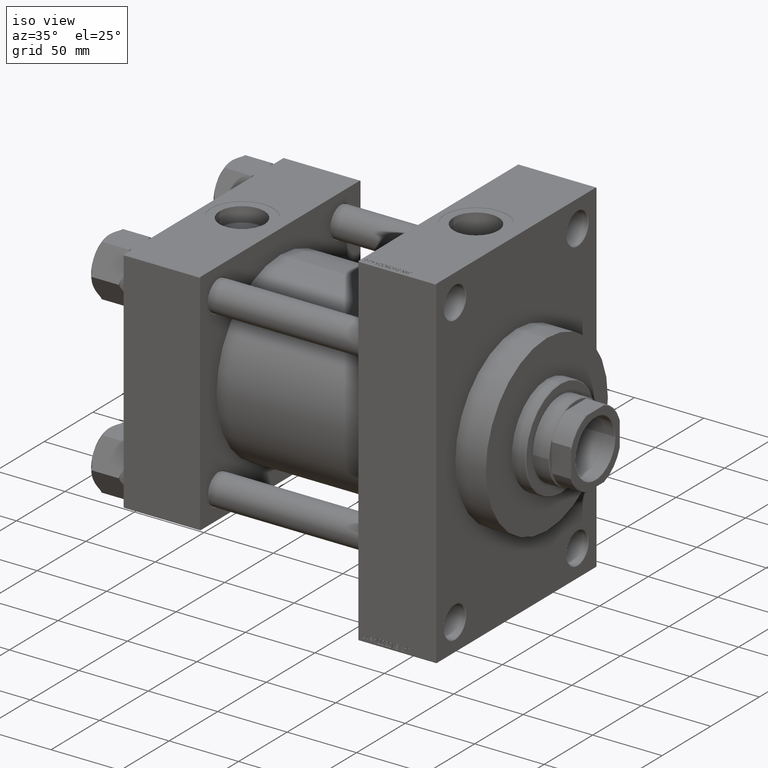
[diagram: clean part render]
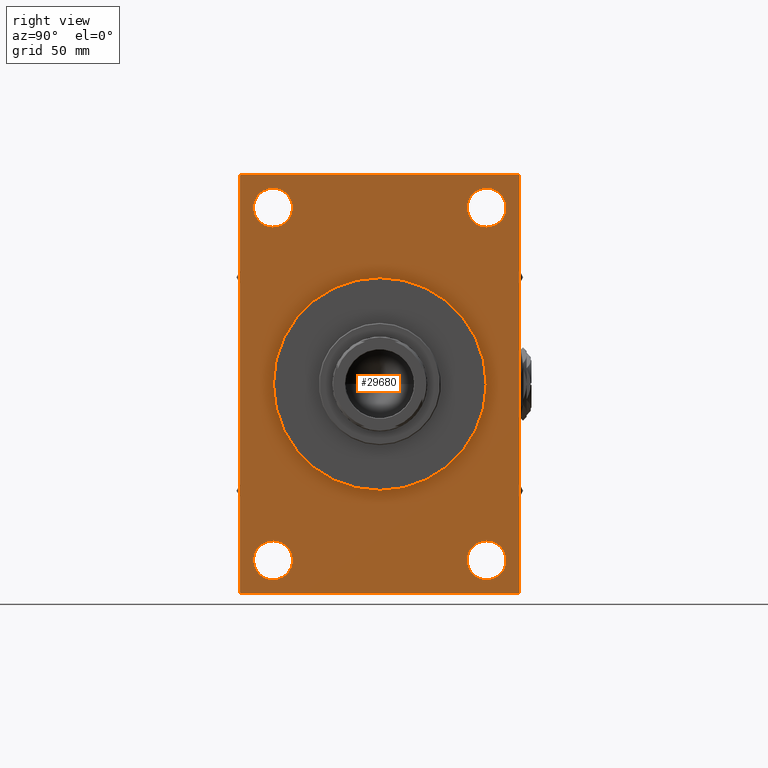
[diagram: tour spotlight — one face highlighted and labeled with its STEP entity id]
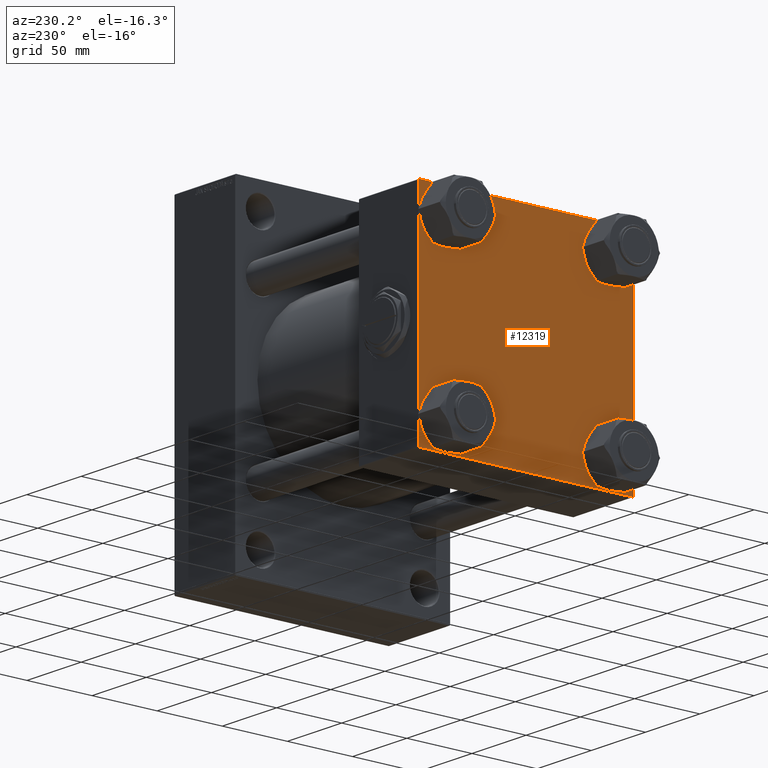
[diagram: tour spotlight — one face highlighted and labeled with its STEP entity id]
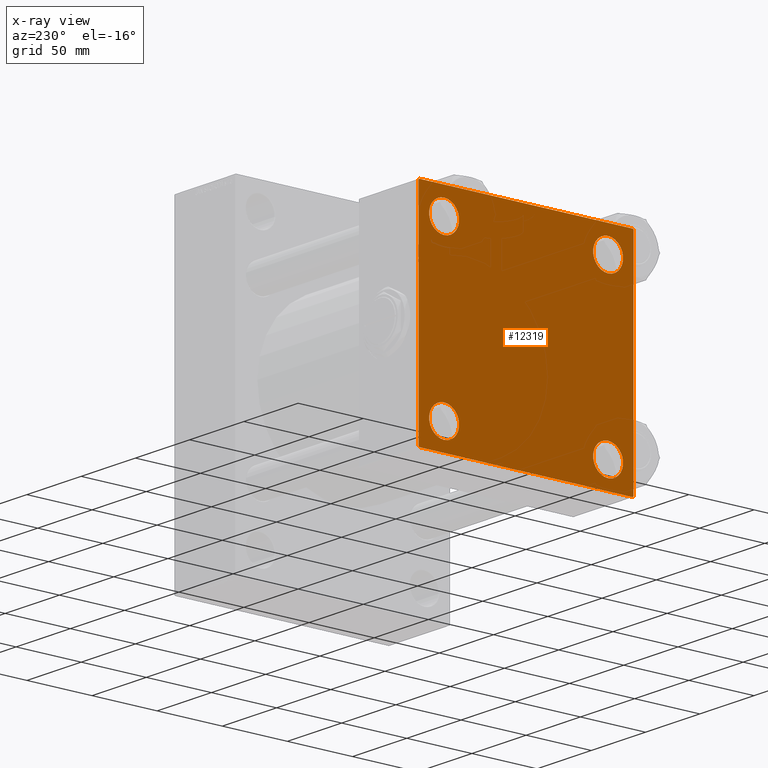
[diagram: x-ray of the same camera — body ghosted, this tour face saturated]
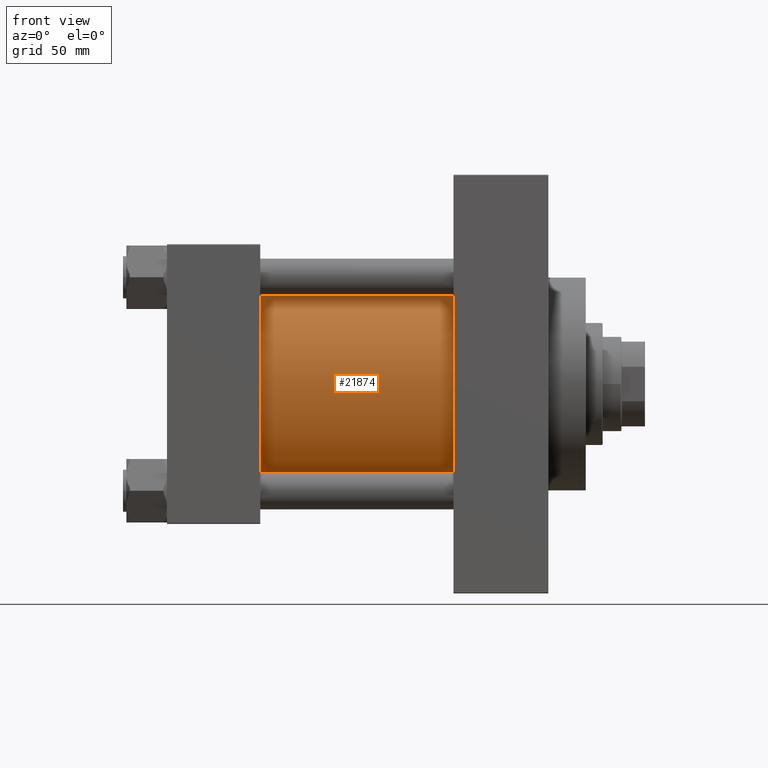
[diagram: tour spotlight — one face highlighted and labeled with its STEP entity id]
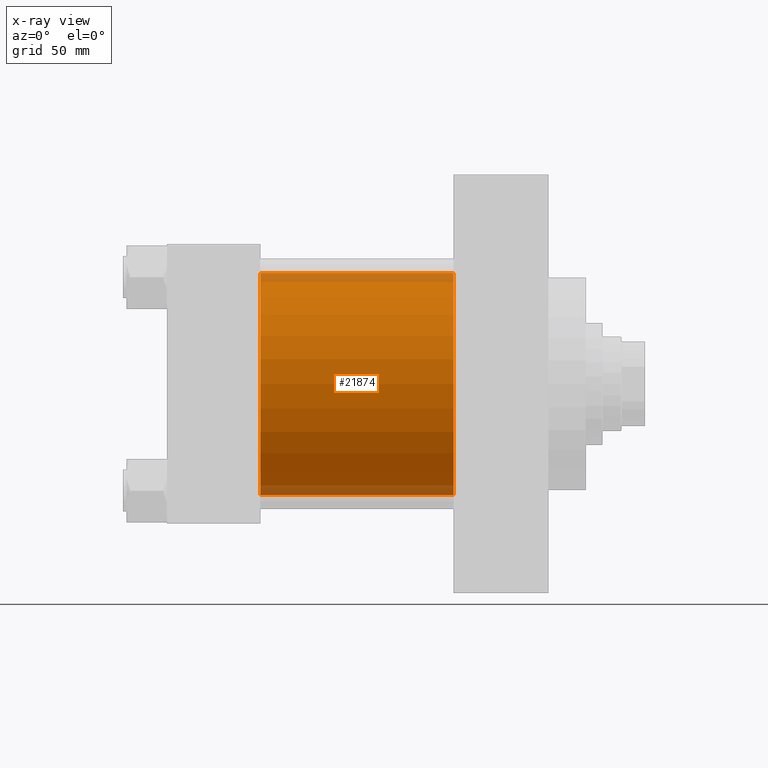
[diagram: x-ray of the same camera — body ghosted, this tour face saturated]
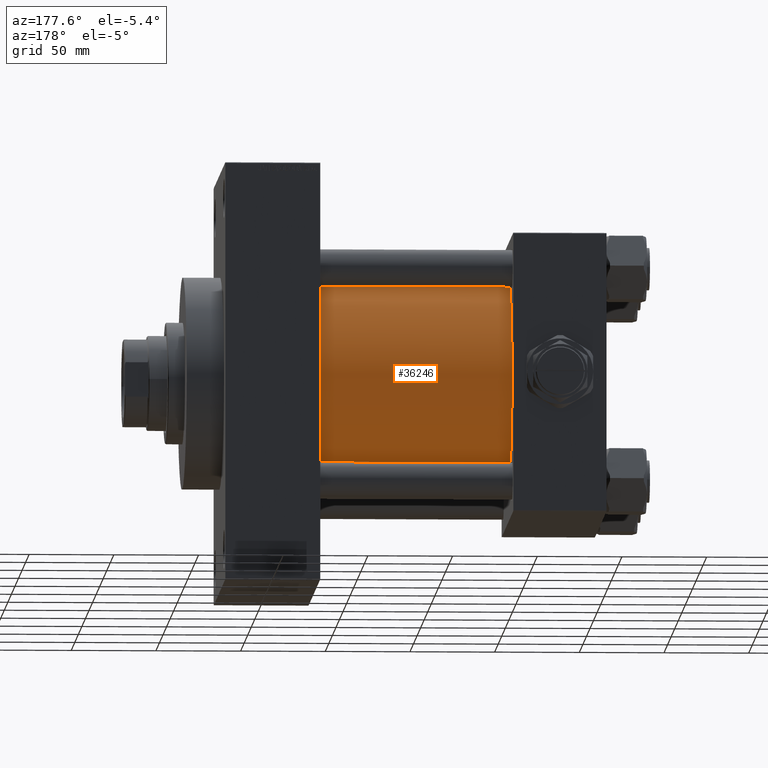
[diagram: tour spotlight — one face highlighted and labeled with its STEP entity id]
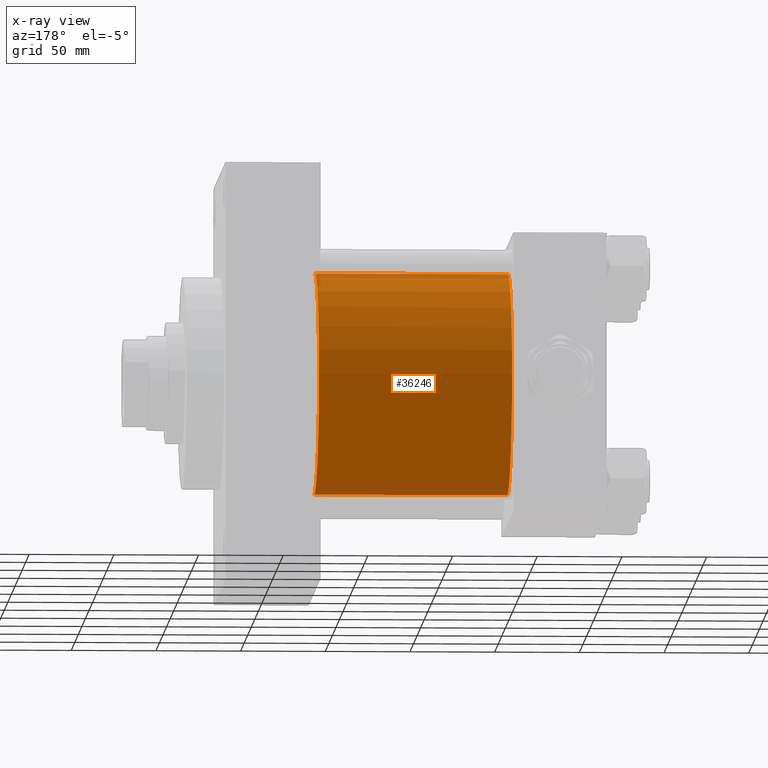
[diagram: x-ray of the same camera — body ghosted, this tour face saturated]
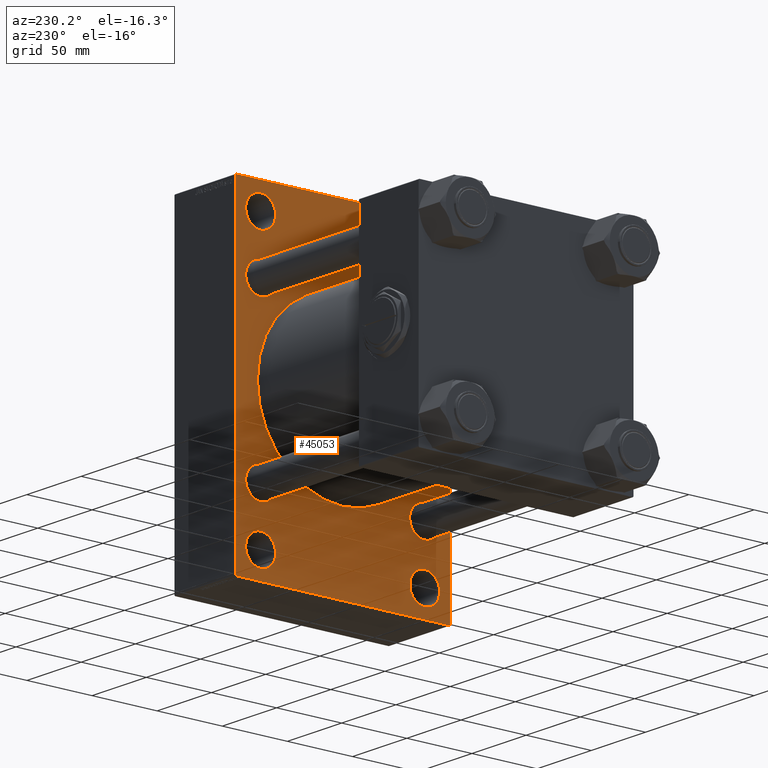
[diagram: tour spotlight — one face highlighted and labeled with its STEP entity id]
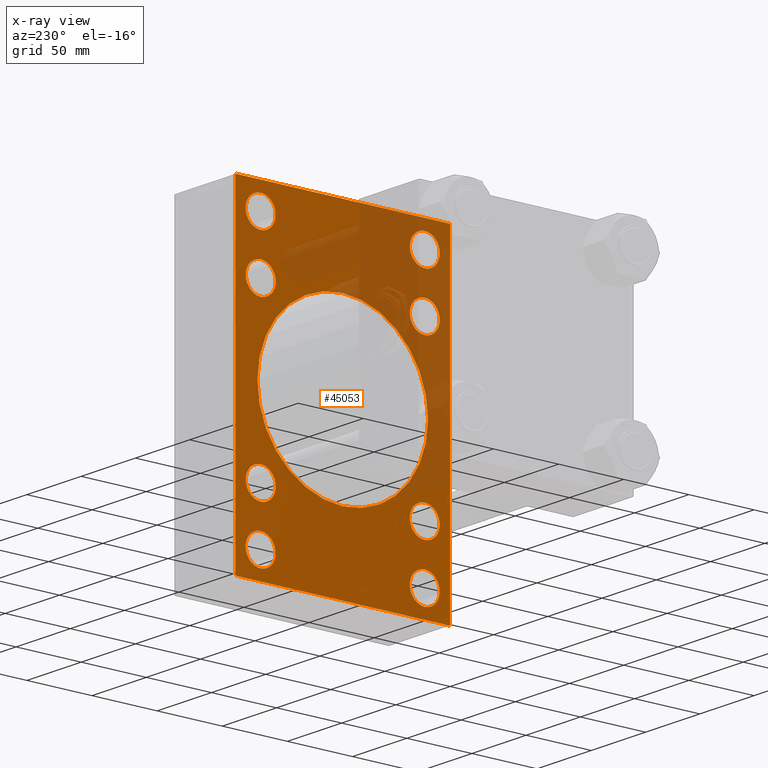
[diagram: x-ray of the same camera — body ghosted, this tour face saturated]
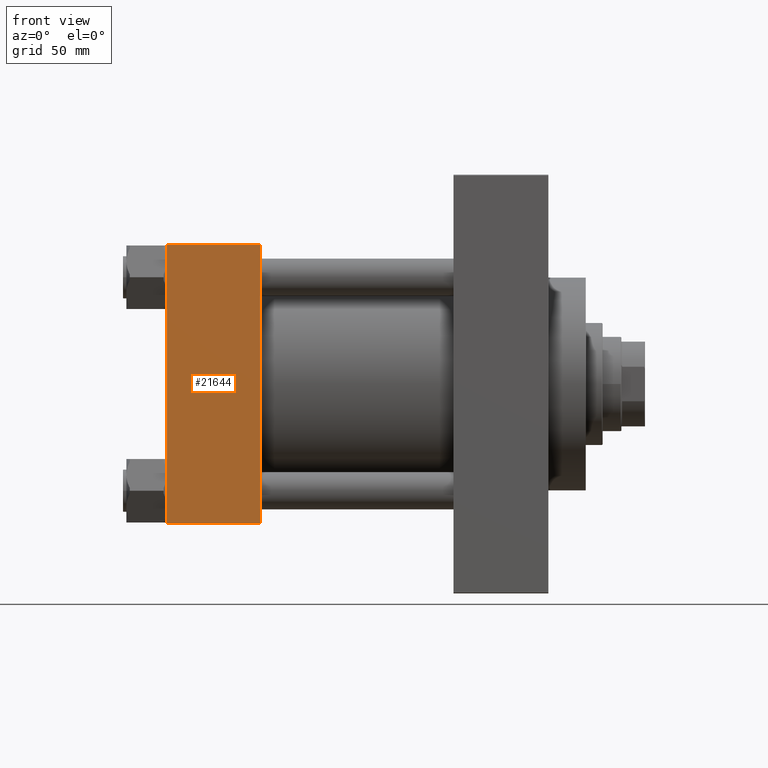
[diagram: tour spotlight — one face highlighted and labeled with its STEP entity id]
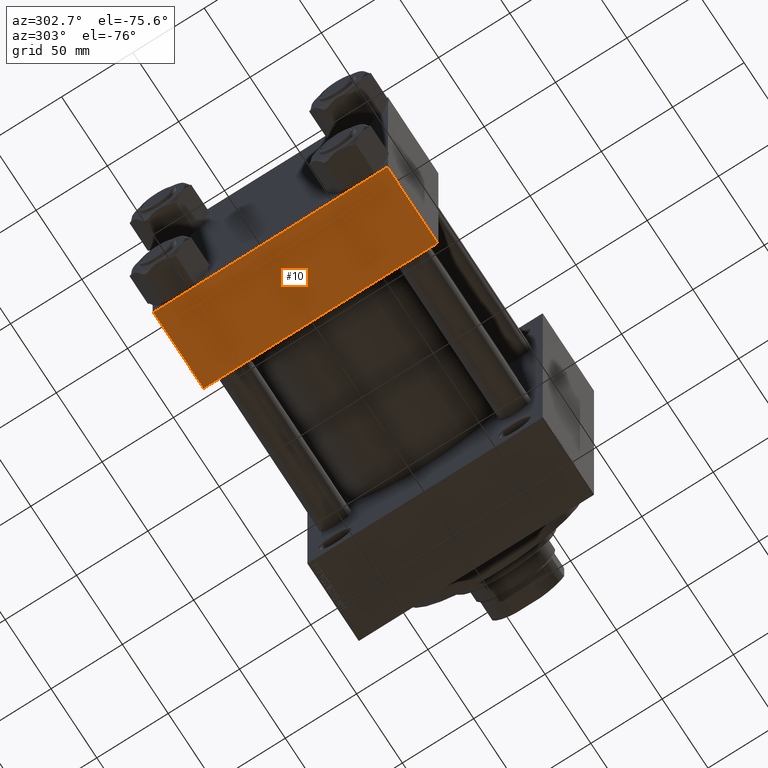
[diagram: tour spotlight — one face highlighted and labeled with its STEP entity id]
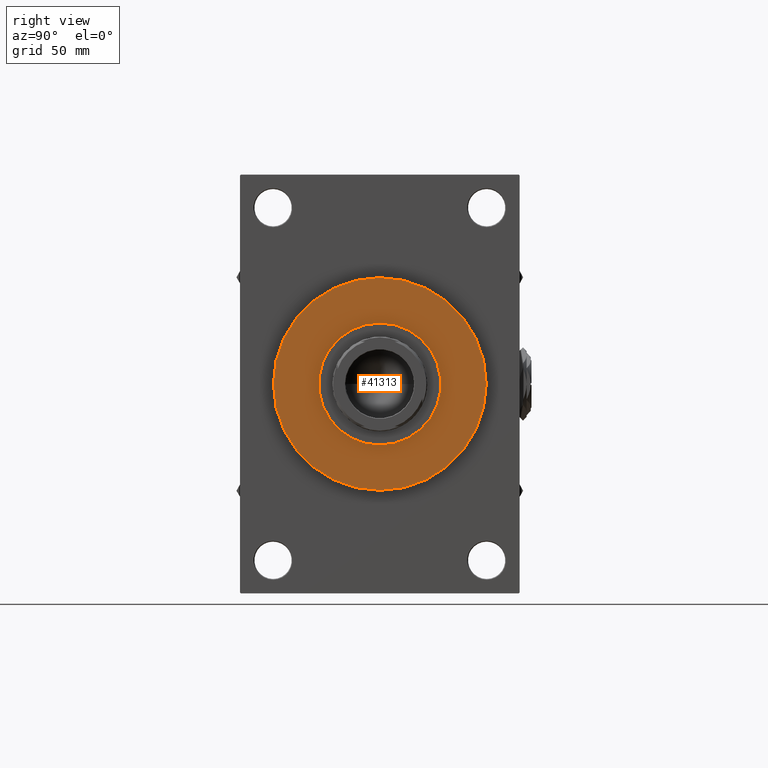
[diagram: tour spotlight — one face highlighted and labeled with its STEP entity id]
A machine part: a face-by-face anatomy tour. The part has 1201 B-rep faces; the first image is the clean iso view, then the 8 largest visible faces are spotlighted one at a time (largest first), each with its STEP entity span.

Face 1 — right view, entity #29680. In plain terms, the highlighted planar face has unit normal (-1, 0, 0).
Definition (entity closure, byte-faithful):
#37 = VERTEX_POINT ( 'NONE', #31029 ) ;
#190 = PLANE ( 'NONE',  #24489 ) ;
#336 = VERTEX_POINT ( 'NONE', #45749 ) ;
#594 = AXIS2_PLACEMENT_3D ( 'NONE', #36071, #46839, #28556 ) ;
#636 = ORIENTED_EDGE ( 'NONE', *, *, #11702, .T. ) ;
#1156 = ORIENTED_EDGE ( 'NONE', *, *, #46791, .T. ) ;
#1169 = CARTESIAN_POINT ( 'NONE',  ( 225.0000000000000000, 82.00000000000011369, -123.5000000000000000 ) ) ;
#1322 = CARTESIAN_POINT ( 'NONE',  ( 225.0000000000000000, 63.00000000000000000, -115.4999999999998579 ) ) ;
#1809 = CARTESIAN_POINT ( 'NONE',  ( 225.0000000000000000, -63.00000000000000000, 103.9999999999999858 ) ) ;
#2197 = CIRCLE ( 'NONE', #594, 11.49999999999984368 ) ;
#2382 = EDGE_LOOP ( 'NONE', ( #8572, #38066 ) ) ;
#2592 = CARTESIAN_POINT ( 'NONE',  ( 225.0000000000000000, -63.00000000000000000, -115.4999999999998579 ) ) ;
#2597 = ORIENTED_EDGE ( 'NONE', *, *, #6713, .T. ) ;
#2753 = CARTESIAN_POINT ( 'NONE',  ( 225.0000000000000000, -63.00000000000000000, -104.0000000000000142 ) ) ;
#2821 = VERTEX_POINT ( 'NONE', #17057 ) ;
#3384 = DIRECTION ( 'NONE',  ( -1.000000000000000000, 0.000000000000000000, -0.000000000000000000 ) ) ;
#3607 = CIRCLE ( 'NONE', #17985, 11.49999999999989875 ) ;
#3689 = FACE_OUTER_BOUND ( 'NONE', #42699, .T. ) ;
#4291 = EDGE_CURVE ( 'NONE', #6258, #37, #10965, .T. ) ;
#4417 = VERTEX_POINT ( 'NONE', #2592 ) ;
#4497 = EDGE_LOOP ( 'NONE', ( #9738, #1156 ) ) ;
#4498 = AXIS2_PLACEMENT_3D ( 'NONE', #2753, #44812, #11748 ) ;
#4767 = VERTEX_POINT ( 'NONE', #48607 ) ;
#4889 = CIRCLE ( 'NONE', #16090, 11.49999999999984368 ) ;
#5313 = DIRECTION ( 'NONE',  ( 0.000000000000000000, 0.000000000000000000, 1.000000000000000000 ) ) ;
#5727 = DIRECTION ( 'NONE',  ( 0.000000000000000000, -1.000000000000000000, -2.523234146875355505E-16 ) ) ;
#6102 = LINE ( 'NONE', #22126, #43633 ) ;
#6258 = VERTEX_POINT ( 'NONE', #16667 ) ;
#6713 = EDGE_CURVE ( 'NONE', #29798, #34061, #21812, .T. ) ;
#6945 = VECTOR ( 'NONE', #13347, 1000.000000000000000 ) ;
#7679 = VERTEX_POINT ( 'NONE', #11535 ) ;
#7736 = DIRECTION ( 'NONE',  ( -0.000000000000000000, -0.7071067811865769936, -0.7071067811865181518 ) ) ;
#7762 = EDGE_CURVE ( 'NONE', #47637, #49115, #33148, .T. ) ;
#7844 = CARTESIAN_POINT ( 'NONE',  ( 225.0000000000000000, 0.000000000000000000, 0.000000000000000000 ) ) ;
#8029 = AXIS2_PLACEMENT_3D ( 'NONE', #46266, #31235, #24216 ) ;
#8173 = FACE_BOUND ( 'NONE', #46048, .T. ) ;
#8468 = AXIS2_PLACEMENT_3D ( 'NONE', #46621, #36101, #28334 ) ;
#8513 = CARTESIAN_POINT ( 'NONE',  ( 225.0000000000000000, 63.00000000000000000, -104.0000000000000142 ) ) ;
#8572 = ORIENTED_EDGE ( 'NONE', *, *, #47350, .T. ) ;
#9010 = DIRECTION ( 'NONE',  ( -1.000000000000000000, 0.000000000000000000, -0.000000000000000000 ) ) ;
#9395 = CARTESIAN_POINT ( 'NONE',  ( 225.0000000000000000, -82.00000000000002842, -123.5000000000000142 ) ) ;
#9438 = CIRCLE ( 'NONE', #23734, 11.49999999999989875 ) ;
#9738 = ORIENTED_EDGE ( 'NONE', *, *, #49022, .T. ) ;
#9875 = VERTEX_POINT ( 'NONE', #16931 ) ;
#10337 = ORIENTED_EDGE ( 'NONE', *, *, #13811, .F. ) ;
#10503 = EDGE_CURVE ( 'NONE', #37, #27729, #19810, .T. ) ;
#10692 = VECTOR ( 'NONE', #29077, 999.9999999999998863 ) ;
#10965 = LINE ( 'NONE', #26234, #32993 ) ;
#11147 = EDGE_CURVE ( 'NONE', #39749, #336, #14892, .T. ) ;
#11466 = EDGE_CURVE ( 'NONE', #29798, #27729, #6102, .T. ) ;
#11490 = CARTESIAN_POINT ( 'NONE',  ( 225.0000000000000000, -82.50000000000002842, 123.0000000000001421 ) ) ;
#11535 = CARTESIAN_POINT ( 'NONE',  ( 225.0000000000000000, 81.99999999999998579, 123.5000000000000142 ) ) ;
#11702 = EDGE_CURVE ( 'NONE', #336, #39749, #31685, .T. ) ;
#11748 = DIRECTION ( 'NONE',  ( 0.000000000000000000, 0.000000000000000000, 1.000000000000000000 ) ) ;
#12604 = CARTESIAN_POINT ( 'NONE',  ( 225.0000000000000000, 82.49999999999998579, 123.5000000000000142 ) ) ;
#13285 = CARTESIAN_POINT ( 'NONE',  ( 225.0000000000000000, -82.00000000000002842, -123.5000000000000142 ) ) ;
#13347 = DIRECTION ( 'NONE',  ( 0.000000000000000000, 5.618537574013950123E-17, -1.000000000000000000 ) ) ;
#13811 = EDGE_CURVE ( 'NONE', #9875, #34061, #21340, .T. ) ;
#13820 = CARTESIAN_POINT ( 'NONE',  ( 225.0000000000000000, 82.50000000000000000, -123.0000000000000995 ) ) ;
#14258 = CARTESIAN_POINT ( 'NONE',  ( 225.0000000000000000, 82.49999999999998579, 123.5000000000000142 ) ) ;
#14832 = EDGE_CURVE ( 'NONE', #15767, #4417, #2197, .T. ) ;
#14892 = CIRCLE ( 'NONE', #42844, 11.49999999999989875 ) ;
#15228 = CARTESIAN_POINT ( 'NONE',  ( 225.0000000000000000, 63.00000000000000000, -92.50000000000017053 ) ) ;
#15767 = VERTEX_POINT ( 'NONE', #18292 ) ;
#16090 = AXIS2_PLACEMENT_3D ( 'NONE', #41807, #34299, #48414 ) ;
#16667 = CARTESIAN_POINT ( 'NONE',  ( 225.0000000000000000, -82.50000000000002842, 123.0000000000001421 ) ) ;
#16931 = CARTESIAN_POINT ( 'NONE',  ( 225.0000000000000000, 82.49999999999998579, 122.9999999999999574 ) ) ;
#16968 = EDGE_CURVE ( 'NONE', #4767, #44010, #9438, .T. ) ;
#17057 = CARTESIAN_POINT ( 'NONE',  ( 225.0000000000000000, 7.684658664649641591E-15, 62.75000000000000000 ) ) ;
#17323 = EDGE_LOOP ( 'NONE', ( #636, #27131 ) ) ;
#17640 = ORIENTED_EDGE ( 'NONE', *, *, #29420, .T. ) ;
#17985 = AXIS2_PLACEMENT_3D ( 'NONE', #1809, #28098, #5313 ) ;
#18292 = CARTESIAN_POINT ( 'NONE',  ( 225.0000000000000000, -63.00000000000000000, -92.50000000000017053 ) ) ;
#18487 = DIRECTION ( 'NONE',  ( 0.000000000000000000, 0.000000000000000000, -1.000000000000000000 ) ) ;
#18963 = DIRECTION ( 'NONE',  ( -1.000000000000000000, 0.000000000000000000, -0.000000000000000000 ) ) ;
#19810 = LINE ( 'NONE', #13285, #27625 ) ;
#20005 = LINE ( 'NONE', #43514, #30092 ) ;
#21340 = LINE ( 'NONE', #12604, #6945 ) ;
#21812 = LINE ( 'NONE', #13820, #10692 ) ;
#22126 = CARTESIAN_POINT ( 'NONE',  ( 225.0000000000000000, 82.50000000000000000, -123.5000000000000000 ) ) ;
#22312 = ORIENTED_EDGE ( 'NONE', *, *, #31962, .T. ) ;
#22411 = CARTESIAN_POINT ( 'NONE',  ( 225.0000000000000000, -63.00000000000000000, 103.9999999999999858 ) ) ;
#22542 = ORIENTED_EDGE ( 'NONE', *, *, #49117, .T. ) ;
#22711 = FACE_BOUND ( 'NONE', #4497, .T. ) ;
#22754 = CIRCLE ( 'NONE', #37170, 62.75000000000000000 ) ;
#23140 = CARTESIAN_POINT ( 'NONE',  ( 225.0000000000000000, 0.000000000000000000, -62.75000000000000000 ) ) ;
#23204 = DIRECTION ( 'NONE',  ( -0.000000000000000000, 0.000000000000000000, 1.000000000000000000 ) ) ;
#23369 = CARTESIAN_POINT ( 'NONE',  ( 225.0000000000000000, 82.50000000000000000, -123.0000000000000995 ) ) ;
#23734 = AXIS2_PLACEMENT_3D ( 'NONE', #22411, #3384, #37448 ) ;
#24055 = CARTESIAN_POINT ( 'NONE',  ( 225.0000000000000000, 63.00000000000000000, 115.4999999999999005 ) ) ;
#24216 = DIRECTION ( 'NONE',  ( 0.000000000000000000, 0.000000000000000000, 1.000000000000000000 ) ) ;
#24489 = AXIS2_PLACEMENT_3D ( 'NONE', #38235, #18963, #23204 ) ;
#24783 = DIRECTION ( 'NONE',  ( 0.000000000000000000, 0.000000000000000000, 1.000000000000000000 ) ) ;
#26088 = CIRCLE ( 'NONE', #4498, 11.49999999999984368 ) ;
#26234 = CARTESIAN_POINT ( 'NONE',  ( 225.0000000000000000, -82.50000000000002842, 123.4999999999999716 ) ) ;
#26705 = FACE_BOUND ( 'NONE', #38470, .T. ) ;
#27131 = ORIENTED_EDGE ( 'NONE', *, *, #11147, .T. ) ;
#27483 = CARTESIAN_POINT ( 'NONE',  ( 225.0000000000000000, -63.00000000000000000, 92.50000000000008527 ) ) ;
#27625 = VECTOR ( 'NONE', #35314, 1000.000000000000114 ) ;
#27729 = VERTEX_POINT ( 'NONE', #9395 ) ;
#28098 = DIRECTION ( 'NONE',  ( -1.000000000000000000, 0.000000000000000000, -0.000000000000000000 ) ) ;
#28334 = DIRECTION ( 'NONE',  ( 0.000000000000000000, 0.000000000000000000, 1.000000000000000000 ) ) ;
#28556 = DIRECTION ( 'NONE',  ( 0.000000000000000000, 0.000000000000000000, 1.000000000000000000 ) ) ;
#28853 = VERTEX_POINT ( 'NONE', #23140 ) ;
#29077 = DIRECTION ( 'NONE',  ( -0.000000000000000000, 0.7071067811865376918, 0.7071067811865574537 ) ) ;
#29393 = DIRECTION ( 'NONE',  ( 0.000000000000000000, -1.000000000000000000, -8.410780489584517938E-17 ) ) ;
#29420 = EDGE_CURVE ( 'NONE', #4417, #15767, #26088, .T. ) ;
#29680 = ADVANCED_FACE ( 'NONE', ( #8173, #26705, #41986, #37741, #22711, #3689 ), #190, .F. ) ;
#29696 = DIRECTION ( 'NONE',  ( -1.000000000000000000, 0.000000000000000000, -0.000000000000000000 ) ) ;
#29798 = VERTEX_POINT ( 'NONE', #1169 ) ;
#30092 = VECTOR ( 'NONE', #31267, 1000.000000000000000 ) ;
#30869 = DIRECTION ( 'NONE',  ( 0.000000000000000000, 0.000000000000000000, 1.000000000000000000 ) ) ;
#31029 = CARTESIAN_POINT ( 'NONE',  ( 225.0000000000000000, -82.50000000000002842, -123.0000000000000853 ) ) ;
#31235 = DIRECTION ( 'NONE',  ( -1.000000000000000000, 0.000000000000000000, -0.000000000000000000 ) ) ;
#31267 = DIRECTION ( 'NONE',  ( 0.000000000000000000, -0.7071067811865081598, 0.7071067811865867636 ) ) ;
#31685 = CIRCLE ( 'NONE', #8468, 11.49999999999989875 ) ;
#31813 = ORIENTED_EDGE ( 'NONE', *, *, #16968, .T. ) ;
#31962 = EDGE_CURVE ( 'NONE', #9875, #7679, #20005, .T. ) ;
#32993 = VECTOR ( 'NONE', #18487, 1000.000000000000000 ) ;
#33148 = CIRCLE ( 'NONE', #45145, 11.49999999999984368 ) ;
#34061 = VERTEX_POINT ( 'NONE', #23369 ) ;
#34299 = DIRECTION ( 'NONE',  ( -1.000000000000000000, 0.000000000000000000, -0.000000000000000000 ) ) ;
#34627 = EDGE_CURVE ( 'NONE', #39411, #6258, #43446, .T. ) ;
#35314 = DIRECTION ( 'NONE',  ( 0.000000000000000000, 0.7071067811865965336, -0.7071067811864985009 ) ) ;
#36071 = CARTESIAN_POINT ( 'NONE',  ( 225.0000000000000000, -63.00000000000000000, -104.0000000000000142 ) ) ;
#36101 = DIRECTION ( 'NONE',  ( -1.000000000000000000, 0.000000000000000000, -0.000000000000000000 ) ) ;
#37170 = AXIS2_PLACEMENT_3D ( 'NONE', #7844, #38387, #30869 ) ;
#37448 = DIRECTION ( 'NONE',  ( 0.000000000000000000, 0.000000000000000000, 1.000000000000000000 ) ) ;
#37741 = FACE_BOUND ( 'NONE', #17323, .T. ) ;
#38066 = ORIENTED_EDGE ( 'NONE', *, *, #7762, .T. ) ;
#38170 = CARTESIAN_POINT ( 'NONE',  ( 225.0000000000000000, -82.00000000000015632, 123.4999999999999716 ) ) ;
#38235 = CARTESIAN_POINT ( 'NONE',  ( 225.0000000000000000, 0.000000000000000000, 0.000000000000000000 ) ) ;
#38387 = DIRECTION ( 'NONE',  ( -1.000000000000000000, 0.000000000000000000, -0.000000000000000000 ) ) ;
#38470 = EDGE_LOOP ( 'NONE', ( #17640, #41367 ) ) ;
#38961 = VECTOR ( 'NONE', #7736, 1000.000000000000000 ) ;
#39233 = CIRCLE ( 'NONE', #8029, 62.75000000000000000 ) ;
#39411 = VERTEX_POINT ( 'NONE', #38170 ) ;
#39749 = VERTEX_POINT ( 'NONE', #24055 ) ;
#41367 = ORIENTED_EDGE ( 'NONE', *, *, #14832, .T. ) ;
#41463 = CARTESIAN_POINT ( 'NONE',  ( 225.0000000000000000, 63.00000000000000000, 104.0000000000000000 ) ) ;
#41807 = CARTESIAN_POINT ( 'NONE',  ( 225.0000000000000000, 63.00000000000000000, -104.0000000000000142 ) ) ;
#41986 = FACE_BOUND ( 'NONE', #2382, .T. ) ;
#42665 = ORIENTED_EDGE ( 'NONE', *, *, #34627, .T. ) ;
#42699 = EDGE_LOOP ( 'NONE', ( #43255, #45099, #47805, #2597, #10337, #22312, #46654, #42665 ) ) ;
#42844 = AXIS2_PLACEMENT_3D ( 'NONE', #41463, #29696, #44957 ) ;
#43255 = ORIENTED_EDGE ( 'NONE', *, *, #4291, .T. ) ;
#43446 = LINE ( 'NONE', #11490, #38961 ) ;
#43514 = CARTESIAN_POINT ( 'NONE',  ( 225.0000000000000000, 81.99999999999998579, 123.5000000000000142 ) ) ;
#43633 = VECTOR ( 'NONE', #29393, 1000.000000000000000 ) ;
#44007 = VECTOR ( 'NONE', #5727, 1000.000000000000000 ) ;
#44010 = VERTEX_POINT ( 'NONE', #27483 ) ;
#44812 = DIRECTION ( 'NONE',  ( -1.000000000000000000, 0.000000000000000000, -0.000000000000000000 ) ) ;
#44957 = DIRECTION ( 'NONE',  ( 0.000000000000000000, 0.000000000000000000, 1.000000000000000000 ) ) ;
#45099 = ORIENTED_EDGE ( 'NONE', *, *, #10503, .T. ) ;
#45145 = AXIS2_PLACEMENT_3D ( 'NONE', #8513, #9010, #24783 ) ;
#45697 = EDGE_CURVE ( 'NONE', #7679, #39411, #48549, .T. ) ;
#45749 = CARTESIAN_POINT ( 'NONE',  ( 225.0000000000000000, 63.00000000000000000, 92.50000000000009948 ) ) ;
#46048 = EDGE_LOOP ( 'NONE', ( #22542, #31813 ) ) ;
#46266 = CARTESIAN_POINT ( 'NONE',  ( 225.0000000000000000, 0.000000000000000000, 0.000000000000000000 ) ) ;
#46621 = CARTESIAN_POINT ( 'NONE',  ( 225.0000000000000000, 63.00000000000000000, 104.0000000000000000 ) ) ;
#46654 = ORIENTED_EDGE ( 'NONE', *, *, #45697, .T. ) ;
#46791 = EDGE_CURVE ( 'NONE', #2821, #28853, #39233, .T. ) ;
#46839 = DIRECTION ( 'NONE',  ( -1.000000000000000000, 0.000000000000000000, -0.000000000000000000 ) ) ;
#47350 = EDGE_CURVE ( 'NONE', #49115, #47637, #4889, .T. ) ;
#47637 = VERTEX_POINT ( 'NONE', #15228 ) ;
#47805 = ORIENTED_EDGE ( 'NONE', *, *, #11466, .F. ) ;
#48414 = DIRECTION ( 'NONE',  ( 0.000000000000000000, 0.000000000000000000, 1.000000000000000000 ) ) ;
#48549 = LINE ( 'NONE', #14258, #44007 ) ;
#48607 = CARTESIAN_POINT ( 'NONE',  ( 225.0000000000000000, -63.00000000000000000, 115.4999999999998863 ) ) ;
#49022 = EDGE_CURVE ( 'NONE', #28853, #2821, #22754, .T. ) ;
#49115 = VERTEX_POINT ( 'NONE', #1322 ) ;
#49117 = EDGE_CURVE ( 'NONE', #44010, #4767, #3607, .T. ) ;

Face 2 — auxiliary view, entity #12319. An x-ray twin of the same camera follows (body ghosted, this face saturated) — the face is partly hidden behind the body. In plain terms, the highlighted planar face has unit normal (-1, 0, 0).
Definition (entity closure, byte-faithful):
#210 = VERTEX_POINT ( 'NONE', #17242 ) ;
#1340 = AXIS2_PLACEMENT_3D ( 'NONE', #49166, #22134, #29883 ) ;
#1620 = CARTESIAN_POINT ( 'NONE',  ( 0.000000000000000000, -62.94999999999998153, -62.95000000000001705 ) ) ;
#2209 = ORIENTED_EDGE ( 'NONE', *, *, #44238, .T. ) ;
#2861 = FACE_BOUND ( 'NONE', #48004, .T. ) ;
#2997 = EDGE_CURVE ( 'NONE', #44845, #210, #31458, .T. ) ;
#4279 = EDGE_CURVE ( 'NONE', #31011, #30887, #38245, .T. ) ;
#4301 = VERTEX_POINT ( 'NONE', #37754 ) ;
#4753 = LINE ( 'NONE', #19786, #6118 ) ;
#5087 = VECTOR ( 'NONE', #31215, 1000.000000000000000 ) ;
#5099 = CARTESIAN_POINT ( 'NONE',  ( 0.000000000000000000, 62.95000000000000284, -74.45000000000001705 ) ) ;
#5348 = CARTESIAN_POINT ( 'NONE',  ( 0.000000000000000000, -62.94999999999998153, 51.45000000000000995 ) ) ;
#5484 = VERTEX_POINT ( 'NONE', #10844 ) ;
#5488 = EDGE_CURVE ( 'NONE', #45785, #42990, #19587, .T. ) ;
#6000 = CARTESIAN_POINT ( 'NONE',  ( 0.000000000000000000, 62.95000000000000284, 62.95000000000000284 ) ) ;
#6118 = VECTOR ( 'NONE', #31053, 1000.000000000000114 ) ;
#6846 = CARTESIAN_POINT ( 'NONE',  ( 0.000000000000000000, -62.94999999999998153, -51.45000000000000995 ) ) ;
#7084 = EDGE_CURVE ( 'NONE', #40357, #29570, #24306, .T. ) ;
#7567 = EDGE_LOOP ( 'NONE', ( #38348, #27984 ) ) ;
#7842 = VERTEX_POINT ( 'NONE', #29026 ) ;
#8072 = CARTESIAN_POINT ( 'NONE',  ( 0.000000000000000000, 82.50000000000002842, 82.50000000000002842 ) ) ;
#8217 = VECTOR ( 'NONE', #14492, 1000.000000000000000 ) ;
#8465 = AXIS2_PLACEMENT_3D ( 'NONE', #6000, #21769, #17777 ) ;
#8700 = LINE ( 'NONE', #16724, #16051 ) ;
#8772 = EDGE_LOOP ( 'NONE', ( #21844, #12622 ) ) ;
#9120 = AXIS2_PLACEMENT_3D ( 'NONE', #20215, #11968, #12959 ) ;
#9178 = DIRECTION ( 'NONE',  ( 0.000000000000000000, 0.000000000000000000, 1.000000000000000000 ) ) ;
#10175 = ORIENTED_EDGE ( 'NONE', *, *, #18483, .T. ) ;
#10844 = CARTESIAN_POINT ( 'NONE',  ( 0.000000000000000000, -62.94999999999998153, -74.45000000000003126 ) ) ;
#10860 = FACE_OUTER_BOUND ( 'NONE', #25802, .T. ) ;
#11105 = EDGE_CURVE ( 'NONE', #4301, #40336, #32467, .T. ) ;
#11968 = DIRECTION ( 'NONE',  ( 1.000000000000000000, -0.000000000000000000, -0.000000000000000000 ) ) ;
#11982 = DIRECTION ( 'NONE',  ( 0.000000000000000000, 0.000000000000000000, 1.000000000000000000 ) ) ;
#12031 = EDGE_CURVE ( 'NONE', #210, #31011, #4753, .T. ) ;
#12229 = ORIENTED_EDGE ( 'NONE', *, *, #13640, .F. ) ;
#12230 = VECTOR ( 'NONE', #37639, 1000.000000000000000 ) ;
#12319 = ADVANCED_FACE ( 'NONE', ( #44667, #2861, #29647, #18142, #10860 ), #33651, .T. ) ;
#12548 = VECTOR ( 'NONE', #24674, 1000.000000000000114 ) ;
#12622 = ORIENTED_EDGE ( 'NONE', *, *, #13968, .T. ) ;
#12959 = DIRECTION ( 'NONE',  ( 0.000000000000000000, 0.000000000000000000, 1.000000000000000000 ) ) ;
#13473 = EDGE_CURVE ( 'NONE', #45785, #44845, #24911, .T. ) ;
#13640 = EDGE_CURVE ( 'NONE', #24007, #34618, #14496, .T. ) ;
#13694 = CARTESIAN_POINT ( 'NONE',  ( 0.000000000000000000, 62.95000000000000284, -62.95000000000000284 ) ) ;
#13968 = EDGE_CURVE ( 'NONE', #40336, #4301, #28523, .T. ) ;
#14056 = CIRCLE ( 'NONE', #20445, 11.50000000000001066 ) ;
#14492 = DIRECTION ( 'NONE',  ( 0.000000000000000000, -1.000000000000000000, -1.682156097916903588E-16 ) ) ;
#14496 = LINE ( 'NONE', #29748, #29350 ) ;
#16051 = VECTOR ( 'NONE', #23967, 999.9999999999998863 ) ;
#16152 = CARTESIAN_POINT ( 'NONE',  ( 0.000000000000000000, 82.50000000000002842, 82.00000000000005684 ) ) ;
#16724 = CARTESIAN_POINT ( 'NONE',  ( 0.000000000000000000, -82.25000000000115108, -82.24999999999886313 ) ) ;
#16898 = DIRECTION ( 'NONE',  ( 0.000000000000000000, 0.000000000000000000, 1.000000000000000000 ) ) ;
#17242 = CARTESIAN_POINT ( 'NONE',  ( 0.000000000000000000, 82.50000000000002842, -82.00000000000000000 ) ) ;
#17590 = CIRCLE ( 'NONE', #37556, 11.50000000000001066 ) ;
#17746 = CARTESIAN_POINT ( 'NONE',  ( 0.000000000000000000, 62.95000000000000284, 62.95000000000000284 ) ) ;
#17777 = DIRECTION ( 'NONE',  ( 0.000000000000000000, 0.000000000000000000, 1.000000000000000000 ) ) ;
#18142 = FACE_BOUND ( 'NONE', #40373, .T. ) ;
#18463 = DIRECTION ( 'NONE',  ( -0.000000000000000000, 0.7071067811865474617, 0.7071067811865474617 ) ) ;
#18483 = EDGE_CURVE ( 'NONE', #24541, #7842, #24595, .T. ) ;
#18722 = VERTEX_POINT ( 'NONE', #6846 ) ;
#19199 = LINE ( 'NONE', #22697, #26127 ) ;
#19587 = LINE ( 'NONE', #8072, #12230 ) ;
#19786 = CARTESIAN_POINT ( 'NONE',  ( 0.000000000000000000, 82.25000000000001421, -82.25000000000001421 ) ) ;
#20215 = CARTESIAN_POINT ( 'NONE',  ( 0.000000000000000000, -62.94999999999998153, 62.95000000000001705 ) ) ;
#20230 = DIRECTION ( 'NONE',  ( 1.000000000000000000, -0.000000000000000000, -0.000000000000000000 ) ) ;
#20293 = CARTESIAN_POINT ( 'NONE',  ( 0.000000000000000000, 82.00000000000005684, -82.49999999999997158 ) ) ;
#20445 = AXIS2_PLACEMENT_3D ( 'NONE', #25541, #43823, #40818 ) ;
#20949 = DIRECTION ( 'NONE',  ( 1.000000000000000000, -0.000000000000000000, -0.000000000000000000 ) ) ;
#21188 = AXIS2_PLACEMENT_3D ( 'NONE', #36352, #40603, #24597 ) ;
#21249 = DIRECTION ( 'NONE',  ( 0.000000000000000000, 0.000000000000000000, 1.000000000000000000 ) ) ;
#21769 = DIRECTION ( 'NONE',  ( 1.000000000000000000, -0.000000000000000000, -0.000000000000000000 ) ) ;
#21844 = ORIENTED_EDGE ( 'NONE', *, *, #11105, .T. ) ;
#21995 = ORIENTED_EDGE ( 'NONE', *, *, #12031, .T. ) ;
#22087 = CARTESIAN_POINT ( 'NONE',  ( 0.000000000000000000, -82.00000000000000000, -82.50000000000000000 ) ) ;
#22134 = DIRECTION ( 'NONE',  ( -1.000000000000000000, 0.000000000000000000, 0.000000000000000000 ) ) ;
#22697 = CARTESIAN_POINT ( 'NONE',  ( 0.000000000000000000, -82.25000000000000000, 82.25000000000000000 ) ) ;
#22882 = ORIENTED_EDGE ( 'NONE', *, *, #33735, .T. ) ;
#23967 = DIRECTION ( 'NONE',  ( 0.000000000000000000, -0.7071067811865376918, 0.7071067811865574537 ) ) ;
#24007 = VERTEX_POINT ( 'NONE', #45471 ) ;
#24085 = ORIENTED_EDGE ( 'NONE', *, *, #5488, .F. ) ;
#24306 = CIRCLE ( 'NONE', #9120, 11.50000000000001066 ) ;
#24464 = ORIENTED_EDGE ( 'NONE', *, *, #45974, .T. ) ;
#24515 = DIRECTION ( 'NONE',  ( 1.000000000000000000, -0.000000000000000000, -0.000000000000000000 ) ) ;
#24541 = VERTEX_POINT ( 'NONE', #25095 ) ;
#24595 = CIRCLE ( 'NONE', #25376, 11.50000000000001066 ) ;
#24597 = DIRECTION ( 'NONE',  ( 0.000000000000000000, 0.000000000000000000, 1.000000000000000000 ) ) ;
#24674 = DIRECTION ( 'NONE',  ( 0.000000000000000000, 0.7071067811865474617, -0.7071067811865474617 ) ) ;
#24911 = LINE ( 'NONE', #30077, #12548 ) ;
#25095 = CARTESIAN_POINT ( 'NONE',  ( 0.000000000000000000, 62.95000000000000284, 51.44999999999999574 ) ) ;
#25376 = AXIS2_PLACEMENT_3D ( 'NONE', #17746, #24515, #21249 ) ;
#25541 = CARTESIAN_POINT ( 'NONE',  ( 0.000000000000000000, -62.94999999999998153, 62.95000000000001705 ) ) ;
#25802 = EDGE_LOOP ( 'NONE', ( #48809, #21995, #42939, #24464, #12229, #22882, #24085, #29849 ) ) ;
#26127 = VECTOR ( 'NONE', #18463, 1000.000000000000114 ) ;
#27900 = DIRECTION ( 'NONE',  ( 1.000000000000000000, -0.000000000000000000, -0.000000000000000000 ) ) ;
#27984 = ORIENTED_EDGE ( 'NONE', *, *, #7084, .T. ) ;
#28495 = EDGE_CURVE ( 'NONE', #7842, #24541, #30056, .T. ) ;
#28523 = CIRCLE ( 'NONE', #34928, 11.50000000000001066 ) ;
#29026 = CARTESIAN_POINT ( 'NONE',  ( 0.000000000000000000, 62.95000000000000284, 74.45000000000001705 ) ) ;
#29350 = VECTOR ( 'NONE', #45013, 1000.000000000000000 ) ;
#29570 = VERTEX_POINT ( 'NONE', #40759 ) ;
#29647 = FACE_BOUND ( 'NONE', #8772, .T. ) ;
#29748 = CARTESIAN_POINT ( 'NONE',  ( 0.000000000000000000, -82.49999999999997158, 82.50000000000001421 ) ) ;
#29849 = ORIENTED_EDGE ( 'NONE', *, *, #13473, .T. ) ;
#29883 = DIRECTION ( 'NONE',  ( 0.000000000000000000, 0.000000000000000000, 1.000000000000000000 ) ) ;
#30056 = CIRCLE ( 'NONE', #8465, 11.50000000000001066 ) ;
#30077 = CARTESIAN_POINT ( 'NONE',  ( 0.000000000000000000, 82.25000000000002842, 82.25000000000002842 ) ) ;
#30887 = VERTEX_POINT ( 'NONE', #22087 ) ;
#31011 = VERTEX_POINT ( 'NONE', #20293 ) ;
#31053 = DIRECTION ( 'NONE',  ( -0.000000000000000000, -0.7071067811865474617, -0.7071067811865474617 ) ) ;
#31215 = DIRECTION ( 'NONE',  ( 0.000000000000000000, 0.000000000000000000, -1.000000000000000000 ) ) ;
#31458 = LINE ( 'NONE', #39221, #5087 ) ;
#31772 = EDGE_CURVE ( 'NONE', #29570, #40357, #14056, .T. ) ;
#32467 = CIRCLE ( 'NONE', #46856, 11.50000000000001066 ) ;
#32723 = ORIENTED_EDGE ( 'NONE', *, *, #28495, .T. ) ;
#33651 = PLANE ( 'NONE',  #1340 ) ;
#33735 = EDGE_CURVE ( 'NONE', #24007, #42990, #19199, .T. ) ;
#34618 = VERTEX_POINT ( 'NONE', #47224 ) ;
#34759 = CARTESIAN_POINT ( 'NONE',  ( 0.000000000000000000, 62.95000000000000284, -62.95000000000000284 ) ) ;
#34928 = AXIS2_PLACEMENT_3D ( 'NONE', #34759, #20230, #11982 ) ;
#35550 = CIRCLE ( 'NONE', #21188, 11.50000000000001066 ) ;
#36352 = CARTESIAN_POINT ( 'NONE',  ( 0.000000000000000000, -62.94999999999998153, -62.95000000000001705 ) ) ;
#37556 = AXIS2_PLACEMENT_3D ( 'NONE', #1620, #27900, #16898 ) ;
#37639 = DIRECTION ( 'NONE',  ( 0.000000000000000000, -1.000000000000000000, -8.410780489584519171E-17 ) ) ;
#37754 = CARTESIAN_POINT ( 'NONE',  ( 0.000000000000000000, 62.95000000000000284, -51.44999999999999574 ) ) ;
#38245 = LINE ( 'NONE', #46001, #8217 ) ;
#38348 = ORIENTED_EDGE ( 'NONE', *, *, #31772, .T. ) ;
#39221 = CARTESIAN_POINT ( 'NONE',  ( 0.000000000000000000, 82.50000000000002842, 82.50000000000002842 ) ) ;
#39491 = CARTESIAN_POINT ( 'NONE',  ( 0.000000000000000000, -81.99999999999997158, 82.50000000000001421 ) ) ;
#40336 = VERTEX_POINT ( 'NONE', #5099 ) ;
#40357 = VERTEX_POINT ( 'NONE', #5348 ) ;
#40373 = EDGE_LOOP ( 'NONE', ( #32723, #10175 ) ) ;
#40603 = DIRECTION ( 'NONE',  ( 1.000000000000000000, -0.000000000000000000, -0.000000000000000000 ) ) ;
#40759 = CARTESIAN_POINT ( 'NONE',  ( 0.000000000000000000, -62.94999999999998153, 74.45000000000003126 ) ) ;
#40818 = DIRECTION ( 'NONE',  ( 0.000000000000000000, 0.000000000000000000, 1.000000000000000000 ) ) ;
#42939 = ORIENTED_EDGE ( 'NONE', *, *, #4279, .T. ) ;
#42990 = VERTEX_POINT ( 'NONE', #39491 ) ;
#43823 = DIRECTION ( 'NONE',  ( 1.000000000000000000, -0.000000000000000000, -0.000000000000000000 ) ) ;
#44238 = EDGE_CURVE ( 'NONE', #18722, #5484, #17590, .T. ) ;
#44667 = FACE_BOUND ( 'NONE', #7567, .T. ) ;
#44845 = VERTEX_POINT ( 'NONE', #16152 ) ;
#45013 = DIRECTION ( 'NONE',  ( 0.000000000000000000, -1.682156097916903588E-16, -1.000000000000000000 ) ) ;
#45471 = CARTESIAN_POINT ( 'NONE',  ( 0.000000000000000000, -82.49999999999997158, 82.00000000000001421 ) ) ;
#45766 = CARTESIAN_POINT ( 'NONE',  ( 0.000000000000000000, 82.00000000000005684, 82.50000000000002842 ) ) ;
#45785 = VERTEX_POINT ( 'NONE', #45766 ) ;
#45974 = EDGE_CURVE ( 'NONE', #30887, #34618, #8700, .T. ) ;
#46001 = CARTESIAN_POINT ( 'NONE',  ( 0.000000000000000000, 82.50000000000002842, -82.49999999999997158 ) ) ;
#46626 = ORIENTED_EDGE ( 'NONE', *, *, #49109, .T. ) ;
#46856 = AXIS2_PLACEMENT_3D ( 'NONE', #13694, #20949, #9178 ) ;
#47224 = CARTESIAN_POINT ( 'NONE',  ( 0.000000000000000000, -82.50000000000000000, -81.99999999999998579 ) ) ;
#48004 = EDGE_LOOP ( 'NONE', ( #2209, #46626 ) ) ;
#48809 = ORIENTED_EDGE ( 'NONE', *, *, #2997, .T. ) ;
#49109 = EDGE_CURVE ( 'NONE', #5484, #18722, #35550, .T. ) ;
#49166 = CARTESIAN_POINT ( 'NONE',  ( 0.000000000000000000, 0.000000000000000000, 0.000000000000000000 ) ) ;

Face 3 — front view, entity #21874. An x-ray twin of the same camera follows (body ghosted, this face saturated) — the face is partly hidden behind the body. In plain terms, the highlighted cylindrical surface (partial cylindrical patch) has radius 65.5 mm, axis along (-1, -0, -0).
Definition (entity closure, byte-faithful):
#1950 = CARTESIAN_POINT ( 'NONE',  ( 54.99999999999999289, -2.602085213965210642E-15, 65.50000000000001421 ) ) ;
#2043 = VECTOR ( 'NONE', #29373, 1000.000000000000000 ) ;
#2580 = LINE ( 'NONE', #33128, #2043 ) ;
#3438 = AXIS2_PLACEMENT_3D ( 'NONE', #8869, #5843, #21119 ) ;
#5843 = DIRECTION ( 'NONE',  ( -1.000000000000000000, -0.000000000000000000, -0.000000000000000000 ) ) ;
#7024 = DIRECTION ( 'NONE',  ( 1.000000000000000000, 0.000000000000000000, 0.000000000000000000 ) ) ;
#7546 = DIRECTION ( 'NONE',  ( 0.000000000000000000, 0.000000000000000000, 1.000000000000000000 ) ) ;
#8348 = LINE ( 'NONE', #19878, #38845 ) ;
#8869 = CARTESIAN_POINT ( 'NONE',  ( 169.0000000000000000, -2.602085213965210642E-15, 0.000000000000000000 ) ) ;
#9136 = VERTEX_POINT ( 'NONE', #14634 ) ;
#12117 = ORIENTED_EDGE ( 'NONE', *, *, #26727, .T. ) ;
#14634 = CARTESIAN_POINT ( 'NONE',  ( 169.0000000000000000, -2.602085213965210642E-15, 65.50000000000001421 ) ) ;
#14821 = ORIENTED_EDGE ( 'NONE', *, *, #24615, .T. ) ;
#16076 = VERTEX_POINT ( 'NONE', #29984 ) ;
#18304 = DIRECTION ( 'NONE',  ( 0.000000000000000000, 0.000000000000000000, -1.000000000000000000 ) ) ;
#18409 = CARTESIAN_POINT ( 'NONE',  ( 54.99999999999999289, 5.419351320449953395E-15, -65.50000000000001421 ) ) ;
#19878 = CARTESIAN_POINT ( 'NONE',  ( 169.0000000000000000, 5.419351320449953395E-15, -65.50000000000001421 ) ) ;
#21119 = DIRECTION ( 'NONE',  ( 0.000000000000000000, 0.000000000000000000, 1.000000000000000000 ) ) ;
#21874 = ADVANCED_FACE ( 'NONE', ( #32150 ), #32652, .T. ) ;
#23158 = AXIS2_PLACEMENT_3D ( 'NONE', #25308, #7024, #18304 ) ;
#24615 = EDGE_CURVE ( 'NONE', #38830, #39307, #31523, .T. ) ;
#25308 = CARTESIAN_POINT ( 'NONE',  ( 169.0000000000000000, -2.602085213965210642E-15, 0.000000000000000000 ) ) ;
#26370 = CIRCLE ( 'NONE', #23158, 65.50000000000001421 ) ;
#26727 = EDGE_CURVE ( 'NONE', #9136, #38830, #2580, .T. ) ;
#29373 = DIRECTION ( 'NONE',  ( -1.000000000000000000, -0.000000000000000000, -0.000000000000000000 ) ) ;
#29984 = CARTESIAN_POINT ( 'NONE',  ( 169.0000000000000000, 5.419351320449953395E-15, -65.50000000000001421 ) ) ;
#30082 = ORIENTED_EDGE ( 'NONE', *, *, #41495, .F. ) ;
#30711 = EDGE_CURVE ( 'NONE', #16076, #39307, #8348, .T. ) ;
#31381 = DIRECTION ( 'NONE',  ( -1.000000000000000000, -0.000000000000000000, -0.000000000000000000 ) ) ;
#31523 = CIRCLE ( 'NONE', #35524, 65.50000000000001421 ) ;
#32150 = FACE_OUTER_BOUND ( 'NONE', #39480, .T. ) ;
#32652 = CYLINDRICAL_SURFACE ( 'NONE', #3438, 65.50000000000001421 ) ;
#33128 = CARTESIAN_POINT ( 'NONE',  ( 169.0000000000000000, -2.602085213965210642E-15, 65.50000000000001421 ) ) ;
#35524 = AXIS2_PLACEMENT_3D ( 'NONE', #45605, #48881, #7546 ) ;
#38830 = VERTEX_POINT ( 'NONE', #1950 ) ;
#38845 = VECTOR ( 'NONE', #31381, 1000.000000000000000 ) ;
#39307 = VERTEX_POINT ( 'NONE', #18409 ) ;
#39480 = EDGE_LOOP ( 'NONE', ( #43320, #30082, #12117, #14821 ) ) ;
#41495 = EDGE_CURVE ( 'NONE', #9136, #16076, #26370, .T. ) ;
#43320 = ORIENTED_EDGE ( 'NONE', *, *, #30711, .F. ) ;
#45605 = CARTESIAN_POINT ( 'NONE',  ( 54.99999999999999289, -2.602085213965210642E-15, 0.000000000000000000 ) ) ;
#48881 = DIRECTION ( 'NONE',  ( 1.000000000000000000, -0.000000000000000000, -0.000000000000000000 ) ) ;

Face 4 — auxiliary view, entity #36246. An x-ray twin of the same camera follows (body ghosted, this face saturated) — the face is partly hidden behind the body. In plain terms, the highlighted cylindrical surface (partial cylindrical patch) has radius 65.5 mm, axis along (-1, -0, -0).
Definition (entity closure, byte-faithful):
#359 = DIRECTION ( 'NONE',  ( 1.000000000000000000, -0.000000000000000000, -0.000000000000000000 ) ) ;
#1144 = ORIENTED_EDGE ( 'NONE', *, *, #5755, .F. ) ;
#1950 = CARTESIAN_POINT ( 'NONE',  ( 54.99999999999999289, -2.602085213965210642E-15, 65.50000000000001421 ) ) ;
#2043 = VECTOR ( 'NONE', #29373, 1000.000000000000000 ) ;
#2580 = LINE ( 'NONE', #33128, #2043 ) ;
#5755 = EDGE_CURVE ( 'NONE', #16076, #9136, #26665, .T. ) ;
#8348 = LINE ( 'NONE', #19878, #38845 ) ;
#9136 = VERTEX_POINT ( 'NONE', #14634 ) ;
#13006 = CARTESIAN_POINT ( 'NONE',  ( 169.0000000000000000, -2.602085213965210642E-15, 0.000000000000000000 ) ) ;
#14634 = CARTESIAN_POINT ( 'NONE',  ( 169.0000000000000000, -2.602085213965210642E-15, 65.50000000000001421 ) ) ;
#16076 = VERTEX_POINT ( 'NONE', #29984 ) ;
#18409 = CARTESIAN_POINT ( 'NONE',  ( 54.99999999999999289, 5.419351320449953395E-15, -65.50000000000001421 ) ) ;
#18875 = DIRECTION ( 'NONE',  ( -1.000000000000000000, -0.000000000000000000, -0.000000000000000000 ) ) ;
#19380 = CARTESIAN_POINT ( 'NONE',  ( 54.99999999999999289, -2.602085213965210642E-15, 0.000000000000000000 ) ) ;
#19878 = CARTESIAN_POINT ( 'NONE',  ( 169.0000000000000000, 5.419351320449953395E-15, -65.50000000000001421 ) ) ;
#21290 = EDGE_LOOP ( 'NONE', ( #1144, #44713, #27949, #38941 ) ) ;
#23854 = CYLINDRICAL_SURFACE ( 'NONE', #46220, 65.50000000000001421 ) ;
#26665 = CIRCLE ( 'NONE', #29058, 65.50000000000001421 ) ;
#26727 = EDGE_CURVE ( 'NONE', #9136, #38830, #2580, .T. ) ;
#27366 = EDGE_CURVE ( 'NONE', #39307, #38830, #34025, .T. ) ;
#27949 = ORIENTED_EDGE ( 'NONE', *, *, #27366, .T. ) ;
#28270 = DIRECTION ( 'NONE',  ( 0.000000000000000000, 0.000000000000000000, -1.000000000000000000 ) ) ;
#29058 = AXIS2_PLACEMENT_3D ( 'NONE', #13006, #31791, #28270 ) ;
#29373 = DIRECTION ( 'NONE',  ( -1.000000000000000000, -0.000000000000000000, -0.000000000000000000 ) ) ;
#29984 = CARTESIAN_POINT ( 'NONE',  ( 169.0000000000000000, 5.419351320449953395E-15, -65.50000000000001421 ) ) ;
#30711 = EDGE_CURVE ( 'NONE', #16076, #39307, #8348, .T. ) ;
#30892 = DIRECTION ( 'NONE',  ( 0.000000000000000000, 0.000000000000000000, 1.000000000000000000 ) ) ;
#31381 = DIRECTION ( 'NONE',  ( -1.000000000000000000, -0.000000000000000000, -0.000000000000000000 ) ) ;
#31791 = DIRECTION ( 'NONE',  ( 1.000000000000000000, 0.000000000000000000, 0.000000000000000000 ) ) ;
#33128 = CARTESIAN_POINT ( 'NONE',  ( 169.0000000000000000, -2.602085213965210642E-15, 65.50000000000001421 ) ) ;
#34025 = CIRCLE ( 'NONE', #47613, 65.50000000000001421 ) ;
#34151 = DIRECTION ( 'NONE',  ( 0.000000000000000000, 0.000000000000000000, 1.000000000000000000 ) ) ;
#36246 = ADVANCED_FACE ( 'NONE', ( #42870 ), #23854, .T. ) ;
#38830 = VERTEX_POINT ( 'NONE', #1950 ) ;
#38845 = VECTOR ( 'NONE', #31381, 1000.000000000000000 ) ;
#38941 = ORIENTED_EDGE ( 'NONE', *, *, #26727, .F. ) ;
#39126 = CARTESIAN_POINT ( 'NONE',  ( 169.0000000000000000, -2.602085213965210642E-15, 0.000000000000000000 ) ) ;
#39307 = VERTEX_POINT ( 'NONE', #18409 ) ;
#42870 = FACE_OUTER_BOUND ( 'NONE', #21290, .T. ) ;
#44713 = ORIENTED_EDGE ( 'NONE', *, *, #30711, .T. ) ;
#46220 = AXIS2_PLACEMENT_3D ( 'NONE', #39126, #18875, #34151 ) ;
#47613 = AXIS2_PLACEMENT_3D ( 'NONE', #19380, #359, #30892 ) ;

Face 5 — auxiliary view, entity #45053. An x-ray twin of the same camera follows (body ghosted, this face saturated) — the face is partly hidden behind the body. In plain terms, the highlighted planar face has unit normal (-1, 0, 0).
Definition (entity closure, byte-faithful):
#579 = CARTESIAN_POINT ( 'NONE',  ( 169.0000000000000000, -63.00000000000000000, -92.50000000000011369 ) ) ;
#1281 = DIRECTION ( 'NONE',  ( 0.000000000000000000, -0.7071067811865965336, 0.7071067811864985009 ) ) ;
#1289 = EDGE_CURVE ( 'NONE', #43766, #43027, #4219, .T. ) ;
#1332 = AXIS2_PLACEMENT_3D ( 'NONE', #3364, #37169, #14635 ) ;
#2030 = CARTESIAN_POINT ( 'NONE',  ( 169.0000000000000000, -62.94999999999998153, 62.95000000000001705 ) ) ;
#2101 = CARTESIAN_POINT ( 'NONE',  ( 169.0000000000000000, -82.50000000000002842, 123.0000000000001421 ) ) ;
#2842 = FACE_OUTER_BOUND ( 'NONE', #30526, .T. ) ;
#2851 = VERTEX_POINT ( 'NONE', #24564 ) ;
#2879 = VECTOR ( 'NONE', #23460, 1000.000000000000000 ) ;
#2978 = VECTOR ( 'NONE', #26093, 1000.000000000000000 ) ;
#3254 = VERTEX_POINT ( 'NONE', #38918 ) ;
#3364 = CARTESIAN_POINT ( 'NONE',  ( 169.0000000000000000, 62.95000000000000284, 62.95000000000000284 ) ) ;
#3426 = CARTESIAN_POINT ( 'NONE',  ( 169.0000000000000000, -62.94999999999998153, -51.45000000000002416 ) ) ;
#3530 = CARTESIAN_POINT ( 'NONE',  ( 169.0000000000000000, 63.00000000000000000, -115.4999999999999147 ) ) ;
#3778 = EDGE_CURVE ( 'NONE', #15507, #34026, #11414, .T. ) ;
#3803 = CARTESIAN_POINT ( 'NONE',  ( 169.0000000000000000, 102.7500000000011937, -102.7499999999983231 ) ) ;
#3834 = AXIS2_PLACEMENT_3D ( 'NONE', #19836, #24324, #28081 ) ;
#4083 = EDGE_LOOP ( 'NONE', ( #16043, #25906 ) ) ;
#4219 = CIRCLE ( 'NONE', #32221, 11.49999999999999645 ) ;
#4247 = CIRCLE ( 'NONE', #33814, 11.49999999999989875 ) ;
#4283 = CIRCLE ( 'NONE', #32282, 11.49999999999999645 ) ;
#4560 = DIRECTION ( 'NONE',  ( 1.000000000000000000, -0.000000000000000000, 0.000000000000000000 ) ) ;
#4651 = LINE ( 'NONE', #31939, #46941 ) ;
#5020 = DIRECTION ( 'NONE',  ( 1.000000000000000000, -0.000000000000000000, 0.000000000000000000 ) ) ;
#5374 = VECTOR ( 'NONE', #1281, 1000.000000000000114 ) ;
#5558 = DIRECTION ( 'NONE',  ( 0.000000000000000000, 0.000000000000000000, 1.000000000000000000 ) ) ;
#5755 = EDGE_CURVE ( 'NONE', #16076, #9136, #26665, .T. ) ;
#5761 = CARTESIAN_POINT ( 'NONE',  ( 169.0000000000000000, -102.7499999999943299, -102.7500000000085834 ) ) ;
#6126 = DIRECTION ( 'NONE',  ( 0.000000000000000000, 0.000000000000000000, 1.000000000000000000 ) ) ;
#6424 = VERTEX_POINT ( 'NONE', #42619 ) ;
#7024 = DIRECTION ( 'NONE',  ( 1.000000000000000000, 0.000000000000000000, 0.000000000000000000 ) ) ;
#7086 = FACE_BOUND ( 'NONE', #7093, .T. ) ;
#7093 = EDGE_LOOP ( 'NONE', ( #32889, #31409 ) ) ;
#7472 = AXIS2_PLACEMENT_3D ( 'NONE', #27106, #4560, #42378 ) ;
#7734 = CARTESIAN_POINT ( 'NONE',  ( 169.0000000000000000, 63.00000000000000000, 104.0000000000000000 ) ) ;
#7758 = ORIENTED_EDGE ( 'NONE', *, *, #22674, .T. ) ;
#7807 = CARTESIAN_POINT ( 'NONE',  ( 169.0000000000000000, 63.00000000000000000, 92.50000000000009948 ) ) ;
#7869 = VERTEX_POINT ( 'NONE', #25271 ) ;
#8506 = ORIENTED_EDGE ( 'NONE', *, *, #33202, .T. ) ;
#8588 = ORIENTED_EDGE ( 'NONE', *, *, #45493, .T. ) ;
#8656 = DIRECTION ( 'NONE',  ( -0.000000000000000000, 0.7071067811865769936, 0.7071067811865181518 ) ) ;
#8659 = AXIS2_PLACEMENT_3D ( 'NONE', #14726, #13743, #40517 ) ;
#8698 = CARTESIAN_POINT ( 'NONE',  ( 169.0000000000000000, 63.00000000000000000, -92.50000000000011369 ) ) ;
#9136 = VERTEX_POINT ( 'NONE', #14634 ) ;
#9255 = VECTOR ( 'NONE', #43314, 1000.000000000000000 ) ;
#9339 = DIRECTION ( 'NONE',  ( 1.000000000000000000, -0.000000000000000000, 0.000000000000000000 ) ) ;
#9386 = EDGE_LOOP ( 'NONE', ( #47413, #7758 ) ) ;
#10025 = DIRECTION ( 'NONE',  ( 1.000000000000000000, -0.000000000000000000, 0.000000000000000000 ) ) ;
#10343 = FACE_BOUND ( 'NONE', #44611, .T. ) ;
#10500 = EDGE_CURVE ( 'NONE', #41627, #47722, #23544, .T. ) ;
#10808 = EDGE_CURVE ( 'NONE', #7869, #29120, #29242, .T. ) ;
#10833 = VECTOR ( 'NONE', #38824, 999.9999999999998863 ) ;
#10972 = EDGE_CURVE ( 'NONE', #27708, #41627, #19228, .T. ) ;
#10977 = DIRECTION ( 'NONE',  ( 1.000000000000000000, -0.000000000000000000, 0.000000000000000000 ) ) ;
#11219 = DIRECTION ( 'NONE',  ( 1.000000000000000000, -0.000000000000000000, 0.000000000000000000 ) ) ;
#11414 = CIRCLE ( 'NONE', #39392, 11.50000000000001066 ) ;
#11501 = DIRECTION ( 'NONE',  ( 0.000000000000000000, 0.000000000000000000, 1.000000000000000000 ) ) ;
#11675 = DIRECTION ( 'NONE',  ( 0.000000000000000000, 0.000000000000000000, -1.000000000000000000 ) ) ;
#11711 = DIRECTION ( 'NONE',  ( 0.000000000000000000, 0.000000000000000000, 1.000000000000000000 ) ) ;
#11883 = EDGE_LOOP ( 'NONE', ( #26804, #8588 ) ) ;
#12088 = EDGE_LOOP ( 'NONE', ( #46926, #25079 ) ) ;
#12166 = VERTEX_POINT ( 'NONE', #49284 ) ;
#12630 = AXIS2_PLACEMENT_3D ( 'NONE', #39039, #23503, #11501 ) ;
#12911 = CARTESIAN_POINT ( 'NONE',  ( 169.0000000000000000, 63.00000000000000000, -104.0000000000000142 ) ) ;
#13006 = CARTESIAN_POINT ( 'NONE',  ( 169.0000000000000000, -2.602085213965210642E-15, 0.000000000000000000 ) ) ;
#13403 = EDGE_CURVE ( 'NONE', #45051, #42532, #4651, .T. ) ;
#13516 = CARTESIAN_POINT ( 'NONE',  ( 169.0000000000000000, -82.00000000000015632, 123.4999999999999716 ) ) ;
#13743 = DIRECTION ( 'NONE',  ( 1.000000000000000000, -0.000000000000000000, 0.000000000000000000 ) ) ;
#13947 = CARTESIAN_POINT ( 'NONE',  ( 169.0000000000000000, 102.7500000000045475, 102.7499999999931362 ) ) ;
#14064 = ORIENTED_EDGE ( 'NONE', *, *, #10972, .T. ) ;
#14125 = FACE_BOUND ( 'NONE', #49235, .T. ) ;
#14607 = FACE_BOUND ( 'NONE', #9386, .T. ) ;
#14634 = CARTESIAN_POINT ( 'NONE',  ( 169.0000000000000000, -2.602085213965210642E-15, 65.50000000000001421 ) ) ;
#14635 = DIRECTION ( 'NONE',  ( 0.000000000000000000, 0.000000000000000000, 1.000000000000000000 ) ) ;
#14726 = CARTESIAN_POINT ( 'NONE',  ( 169.0000000000000000, -63.00000000000000000, -104.0000000000000142 ) ) ;
#14837 = CARTESIAN_POINT ( 'NONE',  ( 169.0000000000000000, 82.50000000000000000, -123.5000000000000000 ) ) ;
#14881 = EDGE_CURVE ( 'NONE', #6424, #40727, #24797, .T. ) ;
#15258 = DIRECTION ( 'NONE',  ( 0.000000000000000000, 0.000000000000000000, 1.000000000000000000 ) ) ;
#15448 = CARTESIAN_POINT ( 'NONE',  ( 169.0000000000000000, -82.50000000000002842, 123.4999999999999716 ) ) ;
#15465 = CIRCLE ( 'NONE', #43424, 11.49999999999989875 ) ;
#15507 = VERTEX_POINT ( 'NONE', #39337 ) ;
#15590 = DIRECTION ( 'NONE',  ( -0.000000000000000000, 0.000000000000000000, 1.000000000000000000 ) ) ;
#15845 = EDGE_CURVE ( 'NONE', #3254, #33779, #49414, .T. ) ;
#16043 = ORIENTED_EDGE ( 'NONE', *, *, #20305, .T. ) ;
#16045 = CARTESIAN_POINT ( 'NONE',  ( 169.0000000000000000, 62.95000000000000284, 74.45000000000000284 ) ) ;
#16076 = VERTEX_POINT ( 'NONE', #29984 ) ;
#16232 = EDGE_CURVE ( 'NONE', #22959, #34535, #30135, .T. ) ;
#16301 = CARTESIAN_POINT ( 'NONE',  ( 169.0000000000000000, 82.49999999999998579, 123.5000000000000142 ) ) ;
#16649 = EDGE_LOOP ( 'NONE', ( #37279, #44635 ) ) ;
#16801 = CIRCLE ( 'NONE', #36803, 11.49999999999989875 ) ;
#16841 = DIRECTION ( 'NONE',  ( 1.000000000000000000, -0.000000000000000000, 0.000000000000000000 ) ) ;
#16972 = CARTESIAN_POINT ( 'NONE',  ( 169.0000000000000000, 62.95000000000000284, -74.45000000000000284 ) ) ;
#17357 = DIRECTION ( 'NONE',  ( 0.000000000000000000, 0.000000000000000000, 1.000000000000000000 ) ) ;
#17378 = FACE_BOUND ( 'NONE', #33077, .T. ) ;
#17754 = DIRECTION ( 'NONE',  ( 0.000000000000000000, 0.000000000000000000, 1.000000000000000000 ) ) ;
#18304 = DIRECTION ( 'NONE',  ( 0.000000000000000000, 0.000000000000000000, -1.000000000000000000 ) ) ;
#18361 = CARTESIAN_POINT ( 'NONE',  ( 169.0000000000000000, -63.00000000000000000, 115.4999999999998863 ) ) ;
#18916 = CIRCLE ( 'NONE', #1332, 11.49999999999999645 ) ;
#19228 = LINE ( 'NONE', #26722, #2879 ) ;
#19406 = DIRECTION ( 'NONE',  ( 1.000000000000000000, -0.000000000000000000, 0.000000000000000000 ) ) ;
#19440 = EDGE_CURVE ( 'NONE', #35737, #22030, #28633, .T. ) ;
#19465 = CARTESIAN_POINT ( 'NONE',  ( 169.0000000000000000, 62.95000000000000284, -62.95000000000000284 ) ) ;
#19819 = VERTEX_POINT ( 'NONE', #8698 ) ;
#19836 = CARTESIAN_POINT ( 'NONE',  ( 169.0000000000000000, -63.00000000000000000, 103.9999999999999858 ) ) ;
#20135 = CARTESIAN_POINT ( 'NONE',  ( 169.0000000000000000, 63.00000000000000000, -104.0000000000000142 ) ) ;
#20305 = EDGE_CURVE ( 'NONE', #33779, #3254, #28754, .T. ) ;
#20448 = DIRECTION ( 'NONE',  ( 0.000000000000000000, 0.000000000000000000, 1.000000000000000000 ) ) ;
#20479 = VERTEX_POINT ( 'NONE', #3530 ) ;
#21348 = CARTESIAN_POINT ( 'NONE',  ( 169.0000000000000000, 62.95000000000000284, -62.95000000000000284 ) ) ;
#21456 = CARTESIAN_POINT ( 'NONE',  ( 169.0000000000000000, -63.00000000000000000, 92.50000000000008527 ) ) ;
#21754 = EDGE_CURVE ( 'NONE', #20479, #19819, #4247, .T. ) ;
#21861 = CARTESIAN_POINT ( 'NONE',  ( 169.0000000000000000, 0.000000000000000000, 0.000000000000000000 ) ) ;
#21953 = CIRCLE ( 'NONE', #37147, 11.49999999999989875 ) ;
#22030 = VERTEX_POINT ( 'NONE', #18361 ) ;
#22674 = EDGE_CURVE ( 'NONE', #34535, #22959, #15465, .T. ) ;
#22959 = VERTEX_POINT ( 'NONE', #579 ) ;
#23060 = EDGE_CURVE ( 'NONE', #34026, #15507, #45060, .T. ) ;
#23158 = AXIS2_PLACEMENT_3D ( 'NONE', #25308, #7024, #18304 ) ;
#23460 = DIRECTION ( 'NONE',  ( 0.000000000000000000, 5.618537574013950123E-17, -1.000000000000000000 ) ) ;
#23461 = CARTESIAN_POINT ( 'NONE',  ( 169.0000000000000000, -63.00000000000000000, -104.0000000000000142 ) ) ;
#23503 = DIRECTION ( 'NONE',  ( 1.000000000000000000, -0.000000000000000000, 0.000000000000000000 ) ) ;
#23544 = LINE ( 'NONE', #3803, #10833 ) ;
#23570 = EDGE_CURVE ( 'NONE', #12166, #49412, #4283, .T. ) ;
#24324 = DIRECTION ( 'NONE',  ( 1.000000000000000000, -0.000000000000000000, 0.000000000000000000 ) ) ;
#24376 = ORIENTED_EDGE ( 'NONE', *, *, #35172, .T. ) ;
#24564 = CARTESIAN_POINT ( 'NONE',  ( 169.0000000000000000, 81.99999999999998579, 123.5000000000000142 ) ) ;
#24676 = DIRECTION ( 'NONE',  ( 1.000000000000000000, -0.000000000000000000, 0.000000000000000000 ) ) ;
#24701 = EDGE_CURVE ( 'NONE', #22030, #35737, #21953, .T. ) ;
#24797 = LINE ( 'NONE', #5761, #5374 ) ;
#25079 = ORIENTED_EDGE ( 'NONE', *, *, #23060, .T. ) ;
#25271 = CARTESIAN_POINT ( 'NONE',  ( 169.0000000000000000, 63.00000000000000000, 115.4999999999999005 ) ) ;
#25308 = CARTESIAN_POINT ( 'NONE',  ( 169.0000000000000000, -2.602085213965210642E-15, 0.000000000000000000 ) ) ;
#25906 = ORIENTED_EDGE ( 'NONE', *, *, #15845, .T. ) ;
#26093 = DIRECTION ( 'NONE',  ( 0.000000000000000000, -1.000000000000000000, -8.410780489584517938E-17 ) ) ;
#26370 = CIRCLE ( 'NONE', #23158, 65.50000000000001421 ) ;
#26521 = CARTESIAN_POINT ( 'NONE',  ( 169.0000000000000000, -82.50000000000002842, -123.0000000000000853 ) ) ;
#26665 = CIRCLE ( 'NONE', #29058, 65.50000000000001421 ) ;
#26722 = CARTESIAN_POINT ( 'NONE',  ( 169.0000000000000000, 82.49999999999998579, 123.5000000000000142 ) ) ;
#26804 = ORIENTED_EDGE ( 'NONE', *, *, #10808, .T. ) ;
#27012 = DIRECTION ( 'NONE',  ( 1.000000000000000000, -0.000000000000000000, 0.000000000000000000 ) ) ;
#27106 = CARTESIAN_POINT ( 'NONE',  ( 169.0000000000000000, -62.94999999999998153, 62.95000000000001705 ) ) ;
#27378 = CARTESIAN_POINT ( 'NONE',  ( 169.0000000000000000, -62.94999999999998153, 51.45000000000000995 ) ) ;
#27656 = EDGE_CURVE ( 'NONE', #45051, #40727, #38706, .T. ) ;
#27708 = VERTEX_POINT ( 'NONE', #40182 ) ;
#28081 = DIRECTION ( 'NONE',  ( 0.000000000000000000, 0.000000000000000000, 1.000000000000000000 ) ) ;
#28260 = EDGE_CURVE ( 'NONE', #2851, #42532, #35818, .T. ) ;
#28270 = DIRECTION ( 'NONE',  ( 0.000000000000000000, 0.000000000000000000, -1.000000000000000000 ) ) ;
#28458 = LINE ( 'NONE', #13947, #35198 ) ;
#28633 = CIRCLE ( 'NONE', #3834, 11.49999999999989875 ) ;
#28754 = CIRCLE ( 'NONE', #47959, 11.49999999999999645 ) ;
#29058 = AXIS2_PLACEMENT_3D ( 'NONE', #13006, #31791, #28270 ) ;
#29120 = VERTEX_POINT ( 'NONE', #7807 ) ;
#29242 = CIRCLE ( 'NONE', #44461, 11.49999999999989875 ) ;
#29380 = FACE_BOUND ( 'NONE', #4083, .T. ) ;
#29866 = FACE_BOUND ( 'NONE', #12088, .T. ) ;
#29984 = CARTESIAN_POINT ( 'NONE',  ( 169.0000000000000000, 5.419351320449953395E-15, -65.50000000000001421 ) ) ;
#30135 = CIRCLE ( 'NONE', #8659, 11.49999999999989875 ) ;
#30303 = DIRECTION ( 'NONE',  ( 1.000000000000000000, -0.000000000000000000, 0.000000000000000000 ) ) ;
#30526 = EDGE_LOOP ( 'NONE', ( #24376, #48664, #34507, #35832, #33259, #40232, #14064, #32971 ) ) ;
#31394 = ORIENTED_EDGE ( 'NONE', *, *, #1289, .T. ) ;
#31409 = ORIENTED_EDGE ( 'NONE', *, *, #21754, .T. ) ;
#31791 = DIRECTION ( 'NONE',  ( 1.000000000000000000, 0.000000000000000000, 0.000000000000000000 ) ) ;
#31939 = CARTESIAN_POINT ( 'NONE',  ( 169.0000000000000000, -102.7499999999966462, 102.7500000000052012 ) ) ;
#32221 = AXIS2_PLACEMENT_3D ( 'NONE', #19465, #42725, #20448 ) ;
#32222 = DIRECTION ( 'NONE',  ( 0.000000000000000000, 0.7071067811865081598, -0.7071067811865867636 ) ) ;
#32282 = AXIS2_PLACEMENT_3D ( 'NONE', #33523, #10977, #17754 ) ;
#32889 = ORIENTED_EDGE ( 'NONE', *, *, #36860, .T. ) ;
#32971 = ORIENTED_EDGE ( 'NONE', *, *, #10500, .T. ) ;
#33077 = EDGE_LOOP ( 'NONE', ( #8506, #33684 ) ) ;
#33202 = EDGE_CURVE ( 'NONE', #49412, #12166, #18916, .T. ) ;
#33259 = ORIENTED_EDGE ( 'NONE', *, *, #28260, .F. ) ;
#33391 = FACE_BOUND ( 'NONE', #16649, .T. ) ;
#33523 = CARTESIAN_POINT ( 'NONE',  ( 169.0000000000000000, 62.95000000000000284, 62.95000000000000284 ) ) ;
#33684 = ORIENTED_EDGE ( 'NONE', *, *, #23570, .T. ) ;
#33779 = VERTEX_POINT ( 'NONE', #3426 ) ;
#33814 = AXIS2_PLACEMENT_3D ( 'NONE', #20135, #19406, #38673 ) ;
#34026 = VERTEX_POINT ( 'NONE', #27378 ) ;
#34379 = AXIS2_PLACEMENT_3D ( 'NONE', #21861, #37137, #15590 ) ;
#34507 = ORIENTED_EDGE ( 'NONE', *, *, #27656, .F. ) ;
#34535 = VERTEX_POINT ( 'NONE', #37047 ) ;
#35022 = AXIS2_PLACEMENT_3D ( 'NONE', #12911, #24676, #6126 ) ;
#35172 = EDGE_CURVE ( 'NONE', #47722, #6424, #37860, .T. ) ;
#35198 = VECTOR ( 'NONE', #32222, 1000.000000000000000 ) ;
#35737 = VERTEX_POINT ( 'NONE', #21456 ) ;
#35818 = LINE ( 'NONE', #16301, #9255 ) ;
#35832 = ORIENTED_EDGE ( 'NONE', *, *, #13403, .T. ) ;
#35857 = CARTESIAN_POINT ( 'NONE',  ( 169.0000000000000000, -62.94999999999998153, -62.95000000000001705 ) ) ;
#36300 = CARTESIAN_POINT ( 'NONE',  ( 169.0000000000000000, 62.95000000000000284, -51.45000000000000995 ) ) ;
#36711 = AXIS2_PLACEMENT_3D ( 'NONE', #21348, #9339, #17357 ) ;
#36803 = AXIS2_PLACEMENT_3D ( 'NONE', #49341, #30303, #49086 ) ;
#36860 = EDGE_CURVE ( 'NONE', #19819, #20479, #41430, .T. ) ;
#37047 = CARTESIAN_POINT ( 'NONE',  ( 169.0000000000000000, -63.00000000000000000, -115.4999999999999147 ) ) ;
#37137 = DIRECTION ( 'NONE',  ( -1.000000000000000000, 0.000000000000000000, -0.000000000000000000 ) ) ;
#37147 = AXIS2_PLACEMENT_3D ( 'NONE', #46833, #5020, #42343 ) ;
#37169 = DIRECTION ( 'NONE',  ( 1.000000000000000000, -0.000000000000000000, 0.000000000000000000 ) ) ;
#37279 = ORIENTED_EDGE ( 'NONE', *, *, #24701, .T. ) ;
#37860 = LINE ( 'NONE', #14837, #2978 ) ;
#38306 = CARTESIAN_POINT ( 'NONE',  ( 169.0000000000000000, 82.50000000000000000, -123.0000000000000995 ) ) ;
#38673 = DIRECTION ( 'NONE',  ( 0.000000000000000000, 0.000000000000000000, 1.000000000000000000 ) ) ;
#38706 = LINE ( 'NONE', #15448, #41249 ) ;
#38824 = DIRECTION ( 'NONE',  ( -0.000000000000000000, -0.7071067811865376918, -0.7071067811865574537 ) ) ;
#38918 = CARTESIAN_POINT ( 'NONE',  ( 169.0000000000000000, -62.94999999999998153, -74.45000000000001705 ) ) ;
#39039 = CARTESIAN_POINT ( 'NONE',  ( 169.0000000000000000, -62.94999999999998153, -62.95000000000001705 ) ) ;
#39232 = CARTESIAN_POINT ( 'NONE',  ( 169.0000000000000000, 82.00000000000011369, -123.5000000000000000 ) ) ;
#39337 = CARTESIAN_POINT ( 'NONE',  ( 169.0000000000000000, -62.94999999999998153, 74.45000000000003126 ) ) ;
#39392 = AXIS2_PLACEMENT_3D ( 'NONE', #2030, #10025, #48843 ) ;
#39466 = EDGE_CURVE ( 'NONE', #43027, #43766, #47898, .T. ) ;
#40182 = CARTESIAN_POINT ( 'NONE',  ( 169.0000000000000000, 82.49999999999998579, 122.9999999999999574 ) ) ;
#40232 = ORIENTED_EDGE ( 'NONE', *, *, #41871, .T. ) ;
#40517 = DIRECTION ( 'NONE',  ( 0.000000000000000000, 0.000000000000000000, 1.000000000000000000 ) ) ;
#40727 = VERTEX_POINT ( 'NONE', #26521 ) ;
#40897 = PLANE ( 'NONE',  #34379 ) ;
#41249 = VECTOR ( 'NONE', #11675, 1000.000000000000000 ) ;
#41430 = CIRCLE ( 'NONE', #35022, 11.49999999999989875 ) ;
#41495 = EDGE_CURVE ( 'NONE', #9136, #16076, #26370, .T. ) ;
#41627 = VERTEX_POINT ( 'NONE', #38306 ) ;
#41871 = EDGE_CURVE ( 'NONE', #2851, #27708, #28458, .T. ) ;
#42343 = DIRECTION ( 'NONE',  ( 0.000000000000000000, 0.000000000000000000, 1.000000000000000000 ) ) ;
#42378 = DIRECTION ( 'NONE',  ( 0.000000000000000000, 0.000000000000000000, 1.000000000000000000 ) ) ;
#42513 = ORIENTED_EDGE ( 'NONE', *, *, #39466, .T. ) ;
#42532 = VERTEX_POINT ( 'NONE', #13516 ) ;
#42619 = CARTESIAN_POINT ( 'NONE',  ( 169.0000000000000000, -82.00000000000002842, -123.5000000000000142 ) ) ;
#42725 = DIRECTION ( 'NONE',  ( 1.000000000000000000, -0.000000000000000000, 0.000000000000000000 ) ) ;
#43027 = VERTEX_POINT ( 'NONE', #16972 ) ;
#43314 = DIRECTION ( 'NONE',  ( 0.000000000000000000, -1.000000000000000000, -2.523234146875355505E-16 ) ) ;
#43424 = AXIS2_PLACEMENT_3D ( 'NONE', #23461, #11219, #11711 ) ;
#43766 = VERTEX_POINT ( 'NONE', #36300 ) ;
#44461 = AXIS2_PLACEMENT_3D ( 'NONE', #7734, #27012, #15258 ) ;
#44611 = EDGE_LOOP ( 'NONE', ( #46662, #48374 ) ) ;
#44635 = ORIENTED_EDGE ( 'NONE', *, *, #19440, .T. ) ;
#45051 = VERTEX_POINT ( 'NONE', #2101 ) ;
#45053 = ADVANCED_FACE ( 'NONE', ( #33391, #14607, #7086, #48669, #29866, #17378, #14125, #29380, #10343, #2842 ), #40897, .T. ) ;
#45060 = CIRCLE ( 'NONE', #7472, 11.50000000000001066 ) ;
#45493 = EDGE_CURVE ( 'NONE', #29120, #7869, #16801, .T. ) ;
#46662 = ORIENTED_EDGE ( 'NONE', *, *, #41495, .T. ) ;
#46833 = CARTESIAN_POINT ( 'NONE',  ( 169.0000000000000000, -63.00000000000000000, 103.9999999999999858 ) ) ;
#46926 = ORIENTED_EDGE ( 'NONE', *, *, #3778, .T. ) ;
#46941 = VECTOR ( 'NONE', #8656, 1000.000000000000000 ) ;
#47413 = ORIENTED_EDGE ( 'NONE', *, *, #16232, .T. ) ;
#47722 = VERTEX_POINT ( 'NONE', #39232 ) ;
#47898 = CIRCLE ( 'NONE', #36711, 11.49999999999999645 ) ;
#47959 = AXIS2_PLACEMENT_3D ( 'NONE', #35857, #16841, #5558 ) ;
#48374 = ORIENTED_EDGE ( 'NONE', *, *, #5755, .T. ) ;
#48664 = ORIENTED_EDGE ( 'NONE', *, *, #14881, .T. ) ;
#48669 = FACE_BOUND ( 'NONE', #11883, .T. ) ;
#48843 = DIRECTION ( 'NONE',  ( 0.000000000000000000, 0.000000000000000000, 1.000000000000000000 ) ) ;
#49086 = DIRECTION ( 'NONE',  ( 0.000000000000000000, 0.000000000000000000, 1.000000000000000000 ) ) ;
#49235 = EDGE_LOOP ( 'NONE', ( #31394, #42513 ) ) ;
#49284 = CARTESIAN_POINT ( 'NONE',  ( 169.0000000000000000, 62.95000000000000284, 51.45000000000000995 ) ) ;
#49341 = CARTESIAN_POINT ( 'NONE',  ( 169.0000000000000000, 63.00000000000000000, 104.0000000000000000 ) ) ;
#49412 = VERTEX_POINT ( 'NONE', #16045 ) ;
#49414 = CIRCLE ( 'NONE', #12630, 11.49999999999999645 ) ;

Face 6 — front view, entity #21644. In plain terms, the highlighted planar face has unit normal (0, 1, -0).
Definition (entity closure, byte-faithful):
#2236 = ORIENTED_EDGE ( 'NONE', *, *, #29782, .T. ) ;
#2647 = DIRECTION ( 'NONE',  ( 0.000000000000000000, 1.682156097916903588E-16, 1.000000000000000000 ) ) ;
#5932 = VERTEX_POINT ( 'NONE', #47551 ) ;
#6905 = FACE_OUTER_BOUND ( 'NONE', #26926, .T. ) ;
#7431 = DIRECTION ( 'NONE',  ( 0.000000000000000000, -1.682156097916903588E-16, -1.000000000000000000 ) ) ;
#9340 = ORIENTED_EDGE ( 'NONE', *, *, #13640, .T. ) ;
#10827 = VECTOR ( 'NONE', #24189, 1000.000000000000000 ) ;
#13640 = EDGE_CURVE ( 'NONE', #24007, #34618, #14496, .T. ) ;
#14496 = LINE ( 'NONE', #29748, #29350 ) ;
#15712 = VECTOR ( 'NONE', #7431, 1000.000000000000000 ) ;
#18914 = PLANE ( 'NONE',  #47097 ) ;
#19806 = ORIENTED_EDGE ( 'NONE', *, *, #47727, .T. ) ;
#19959 = CARTESIAN_POINT ( 'NONE',  ( 55.00000000000000000, -82.50000000000000000, -81.99999999999998579 ) ) ;
#20203 = DIRECTION ( 'NONE',  ( 1.000000000000000000, 0.000000000000000000, 0.000000000000000000 ) ) ;
#21644 = ADVANCED_FACE ( 'NONE', ( #6905 ), #18914, .F. ) ;
#21925 = DIRECTION ( 'NONE',  ( 0.000000000000000000, 1.000000000000000000, -1.682156097916903588E-16 ) ) ;
#24007 = VERTEX_POINT ( 'NONE', #45471 ) ;
#24189 = DIRECTION ( 'NONE',  ( -1.000000000000000000, 0.000000000000000000, 0.000000000000000000 ) ) ;
#26419 = CARTESIAN_POINT ( 'NONE',  ( 55.00000000000000000, -82.49999999999997158, 82.50000000000001421 ) ) ;
#26926 = EDGE_LOOP ( 'NONE', ( #9340, #19806, #37855, #2236 ) ) ;
#27953 = CARTESIAN_POINT ( 'NONE',  ( 55.00000000000000000, -82.49999999999997158, 82.00000000000001421 ) ) ;
#29350 = VECTOR ( 'NONE', #45013, 1000.000000000000000 ) ;
#29676 = EDGE_CURVE ( 'NONE', #5932, #36714, #34235, .T. ) ;
#29748 = CARTESIAN_POINT ( 'NONE',  ( 0.000000000000000000, -82.49999999999997158, 82.50000000000001421 ) ) ;
#29782 = EDGE_CURVE ( 'NONE', #5932, #24007, #35460, .T. ) ;
#33963 = CARTESIAN_POINT ( 'NONE',  ( 55.00000000000000000, -82.50000000000000000, -81.99999999999998579 ) ) ;
#34235 = LINE ( 'NONE', #37985, #15712 ) ;
#34618 = VERTEX_POINT ( 'NONE', #47224 ) ;
#35460 = LINE ( 'NONE', #27953, #10827 ) ;
#36714 = VERTEX_POINT ( 'NONE', #33963 ) ;
#37855 = ORIENTED_EDGE ( 'NONE', *, *, #29676, .F. ) ;
#37985 = CARTESIAN_POINT ( 'NONE',  ( 55.00000000000000000, -82.49999999999997158, 82.50000000000001421 ) ) ;
#45013 = DIRECTION ( 'NONE',  ( 0.000000000000000000, -1.682156097916903588E-16, -1.000000000000000000 ) ) ;
#45471 = CARTESIAN_POINT ( 'NONE',  ( 0.000000000000000000, -82.49999999999997158, 82.00000000000001421 ) ) ;
#45673 = VECTOR ( 'NONE', #20203, 1000.000000000000000 ) ;
#46257 = LINE ( 'NONE', #19959, #45673 ) ;
#47097 = AXIS2_PLACEMENT_3D ( 'NONE', #26419, #21925, #2647 ) ;
#47224 = CARTESIAN_POINT ( 'NONE',  ( 0.000000000000000000, -82.50000000000000000, -81.99999999999998579 ) ) ;
#47551 = CARTESIAN_POINT ( 'NONE',  ( 55.00000000000000000, -82.49999999999997158, 82.00000000000001421 ) ) ;
#47727 = EDGE_CURVE ( 'NONE', #34618, #36714, #46257, .T. ) ;

Face 7 — auxiliary view, entity #10. In plain terms, the highlighted planar face has unit normal (0, 0, -1).
Definition (entity closure, byte-faithful):
#10 = ADVANCED_FACE ( 'NONE', ( #11009 ), #11256, .T. ) ;
#1328 = DIRECTION ( 'NONE',  ( -1.000000000000000000, 0.000000000000000000, 0.000000000000000000 ) ) ;
#4279 = EDGE_CURVE ( 'NONE', #31011, #30887, #38245, .T. ) ;
#5168 = VERTEX_POINT ( 'NONE', #13690 ) ;
#7540 = VECTOR ( 'NONE', #26019, 1000.000000000000000 ) ;
#8217 = VECTOR ( 'NONE', #14492, 1000.000000000000000 ) ;
#8227 = DIRECTION ( 'NONE',  ( 0.000000000000000000, 1.000000000000000000, 1.682156097916903588E-16 ) ) ;
#10704 = DIRECTION ( 'NONE',  ( 1.000000000000000000, 0.000000000000000000, 0.000000000000000000 ) ) ;
#11009 = FACE_OUTER_BOUND ( 'NONE', #42093, .T. ) ;
#11256 = PLANE ( 'NONE',  #17005 ) ;
#12408 = VERTEX_POINT ( 'NONE', #23348 ) ;
#12791 = VECTOR ( 'NONE', #10704, 1000.000000000000000 ) ;
#13690 = CARTESIAN_POINT ( 'NONE',  ( 55.00000000000000000, -82.00000000000000000, -82.50000000000000000 ) ) ;
#14492 = DIRECTION ( 'NONE',  ( 0.000000000000000000, -1.000000000000000000, -1.682156097916903588E-16 ) ) ;
#17005 = AXIS2_PLACEMENT_3D ( 'NONE', #26519, #28252, #8227 ) ;
#17779 = CARTESIAN_POINT ( 'NONE',  ( 55.00000000000000000, 82.50000000000002842, -82.49999999999997158 ) ) ;
#20293 = CARTESIAN_POINT ( 'NONE',  ( 0.000000000000000000, 82.00000000000005684, -82.49999999999997158 ) ) ;
#21128 = ORIENTED_EDGE ( 'NONE', *, *, #41042, .T. ) ;
#21447 = VECTOR ( 'NONE', #1328, 1000.000000000000000 ) ;
#22087 = CARTESIAN_POINT ( 'NONE',  ( 0.000000000000000000, -82.00000000000000000, -82.50000000000000000 ) ) ;
#23348 = CARTESIAN_POINT ( 'NONE',  ( 55.00000000000000000, 82.00000000000005684, -82.49999999999997158 ) ) ;
#24863 = EDGE_CURVE ( 'NONE', #12408, #5168, #44556, .T. ) ;
#26019 = DIRECTION ( 'NONE',  ( 0.000000000000000000, -1.000000000000000000, -1.682156097916903588E-16 ) ) ;
#26519 = CARTESIAN_POINT ( 'NONE',  ( 55.00000000000000000, 82.50000000000002842, -82.49999999999997158 ) ) ;
#28069 = ORIENTED_EDGE ( 'NONE', *, *, #4279, .F. ) ;
#28252 = DIRECTION ( 'NONE',  ( 0.000000000000000000, 1.682156097916903588E-16, -1.000000000000000000 ) ) ;
#28847 = CARTESIAN_POINT ( 'NONE',  ( 0.000000000000000000, -82.00000000000000000, -82.50000000000000000 ) ) ;
#30887 = VERTEX_POINT ( 'NONE', #22087 ) ;
#31011 = VERTEX_POINT ( 'NONE', #20293 ) ;
#32612 = LINE ( 'NONE', #28847, #21447 ) ;
#36333 = EDGE_CURVE ( 'NONE', #5168, #30887, #32612, .T. ) ;
#36763 = ORIENTED_EDGE ( 'NONE', *, *, #24863, .T. ) ;
#37001 = CARTESIAN_POINT ( 'NONE',  ( 55.00000000000000000, 82.00000000000005684, -82.49999999999997158 ) ) ;
#38245 = LINE ( 'NONE', #46001, #8217 ) ;
#41006 = LINE ( 'NONE', #37001, #12791 ) ;
#41042 = EDGE_CURVE ( 'NONE', #31011, #12408, #41006, .T. ) ;
#42093 = EDGE_LOOP ( 'NONE', ( #28069, #21128, #36763, #42570 ) ) ;
#42570 = ORIENTED_EDGE ( 'NONE', *, *, #36333, .T. ) ;
#44556 = LINE ( 'NONE', #17779, #7540 ) ;
#46001 = CARTESIAN_POINT ( 'NONE',  ( 0.000000000000000000, 82.50000000000002842, -82.49999999999997158 ) ) ;

Face 8 — right view, entity #41313. In plain terms, the highlighted planar face has unit normal (1, -0, -0).
Definition (entity closure, byte-faithful):
#80 = AXIS2_PLACEMENT_3D ( 'NONE', #2186, #17465, #22871 ) ;
#473 = CARTESIAN_POINT ( 'NONE',  ( 0.000000000000000000, 0.000000000000000000, 43.25999999999999801 ) ) ;
#2186 = CARTESIAN_POINT ( 'NONE',  ( 0.000000000000000000, 0.000000000000000000, 43.25999999999999801 ) ) ;
#3579 = DIRECTION ( 'NONE',  ( 1.000000000000000000, 0.000000000000000000, -0.000000000000000000 ) ) ;
#4307 = PLANE ( 'NONE',  #27163 ) ;
#4357 = VERTEX_POINT ( 'NONE', #47673 ) ;
#5110 = ORIENTED_EDGE ( 'NONE', *, *, #35434, .F. ) ;
#5587 = CARTESIAN_POINT ( 'NONE',  ( 0.000000000000000000, 0.000000000000000000, 43.25999999999999801 ) ) ;
#7539 = CARTESIAN_POINT ( 'NONE',  ( 0.000000000000000000, 0.000000000000000000, 43.25999999999999801 ) ) ;
#7966 = DIRECTION ( 'NONE',  ( 0.000000000000000000, 0.000000000000000000, 1.000000000000000000 ) ) ;
#15097 = CIRCLE ( 'NONE', #48660, 62.75000000000000000 ) ;
#17465 = DIRECTION ( 'NONE',  ( 0.000000000000000000, 0.000000000000000000, 1.000000000000000000 ) ) ;
#17607 = DIRECTION ( 'NONE',  ( 0.000000000000000000, 0.000000000000000000, 1.000000000000000000 ) ) ;
#22202 = AXIS2_PLACEMENT_3D ( 'NONE', #473, #7966, #31750 ) ;
#22852 = FACE_OUTER_BOUND ( 'NONE', #44125, .T. ) ;
#22871 = DIRECTION ( 'NONE',  ( 1.000000000000000000, 0.000000000000000000, 0.000000000000000000 ) ) ;
#23124 = CIRCLE ( 'NONE', #39927, 36.00000000000000000 ) ;
#23155 = ORIENTED_EDGE ( 'NONE', *, *, #43105, .T. ) ;
#23578 = CARTESIAN_POINT ( 'NONE',  ( 62.75000000000000000, 7.684658664649641591E-15, 43.25999999999999801 ) ) ;
#23800 = DIRECTION ( 'NONE',  ( 0.000000000000000000, 0.000000000000000000, 1.000000000000000000 ) ) ;
#24448 = VERTEX_POINT ( 'NONE', #32867 ) ;
#26219 = CARTESIAN_POINT ( 'NONE',  ( 36.00000000000000000, 4.408728476930470856E-15, 43.25999999999999801 ) ) ;
#26596 = DIRECTION ( 'NONE',  ( 0.000000000000000000, 0.000000000000000000, 1.000000000000000000 ) ) ;
#27163 = AXIS2_PLACEMENT_3D ( 'NONE', #45876, #26596, #3579 ) ;
#29661 = VERTEX_POINT ( 'NONE', #26219 ) ;
#30611 = FACE_BOUND ( 'NONE', #48356, .T. ) ;
#31750 = DIRECTION ( 'NONE',  ( 1.000000000000000000, 0.000000000000000000, 0.000000000000000000 ) ) ;
#32867 = CARTESIAN_POINT ( 'NONE',  ( -36.00000000000000000, 0.000000000000000000, 43.25999999999999801 ) ) ;
#35434 = EDGE_CURVE ( 'NONE', #24448, #29661, #41388, .T. ) ;
#37417 = EDGE_CURVE ( 'NONE', #41356, #4357, #15097, .T. ) ;
#39546 = EDGE_CURVE ( 'NONE', #29661, #24448, #23124, .T. ) ;
#39927 = AXIS2_PLACEMENT_3D ( 'NONE', #5587, #17607, #44119 ) ;
#41313 = ADVANCED_FACE ( 'NONE', ( #30611, #22852 ), #4307, .T. ) ;
#41356 = VERTEX_POINT ( 'NONE', #23578 ) ;
#41388 = CIRCLE ( 'NONE', #22202, 36.00000000000000000 ) ;
#41840 = DIRECTION ( 'NONE',  ( 1.000000000000000000, 0.000000000000000000, 0.000000000000000000 ) ) ;
#43105 = EDGE_CURVE ( 'NONE', #4357, #41356, #43234, .T. ) ;
#43234 = CIRCLE ( 'NONE', #80, 62.75000000000000000 ) ;
#44119 = DIRECTION ( 'NONE',  ( 1.000000000000000000, 0.000000000000000000, 0.000000000000000000 ) ) ;
#44125 = EDGE_LOOP ( 'NONE', ( #23155, #47937 ) ) ;
#45876 = CARTESIAN_POINT ( 'NONE',  ( 0.000000000000000000, 0.000000000000000000, 43.25999999999999801 ) ) ;
#46155 = ORIENTED_EDGE ( 'NONE', *, *, #39546, .F. ) ;
#47673 = CARTESIAN_POINT ( 'NONE',  ( -62.75000000000000000, 0.000000000000000000, 43.25999999999999801 ) ) ;
#47937 = ORIENTED_EDGE ( 'NONE', *, *, #37417, .T. ) ;
#48356 = EDGE_LOOP ( 'NONE', ( #5110, #46155 ) ) ;
#48660 = AXIS2_PLACEMENT_3D ( 'NONE', #7539, #23800, #41840 ) ;